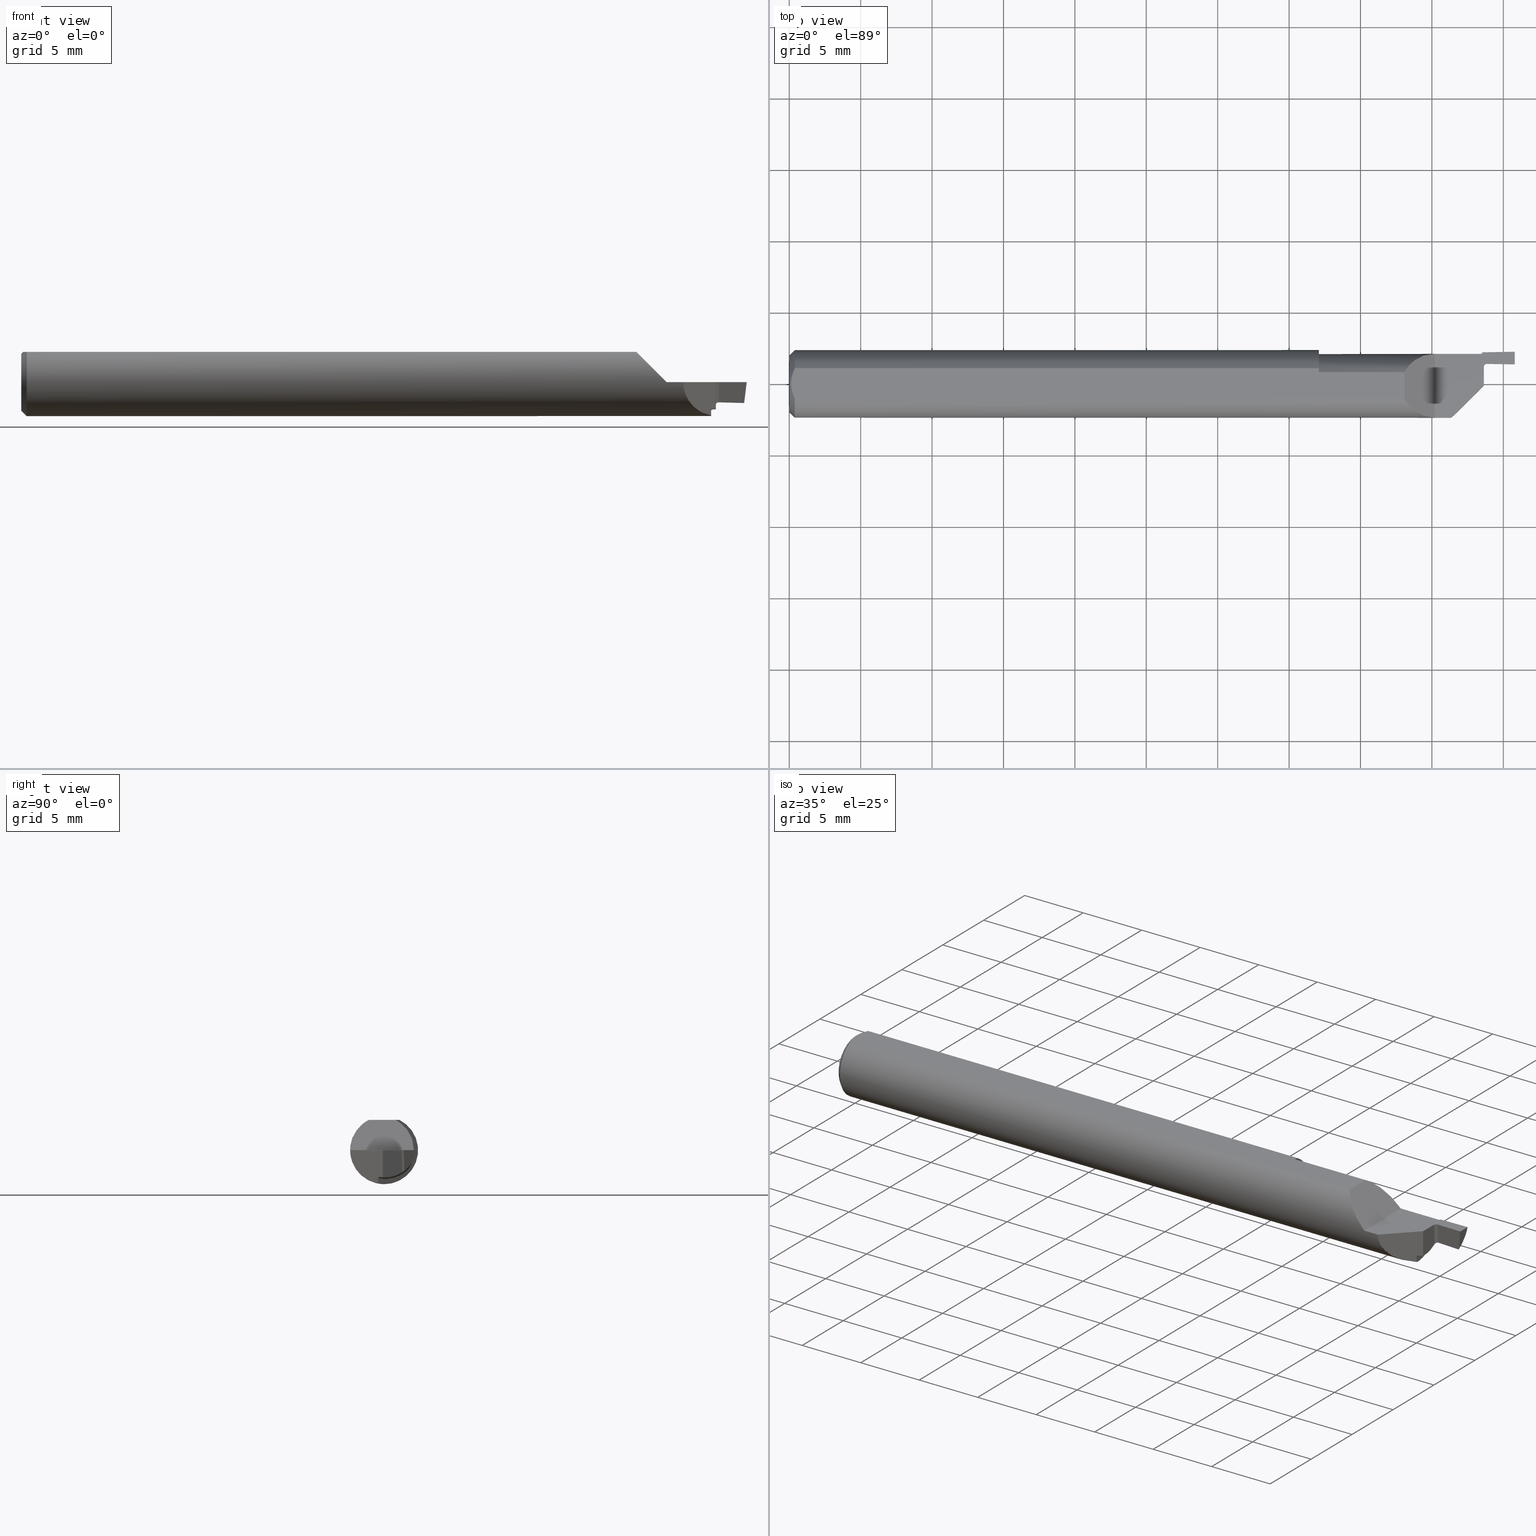
[diagram: canonical four-view strip — front | top / right | iso, engineering-drawing reading convention]
A machine part, canonical four-view strip (front | top / right | iso — engineering-drawing reading convention). The complete STEP part file that produces these views, byte-faithful:
ISO-10303-21;
HEADER;
FILE_DESCRIPTION (( 'STEP AP203' ),
    '1' );
FILE_NAME ('220025-FG187-035.STEP',
    '2024-06-10T22:14:53',
    ( '' ),
    ( '' ),
    'SwSTEP 2.0',
    'SolidWorks 2022',
    '' );
FILE_SCHEMA (( 'CONFIG_CONTROL_DESIGN' ));
ENDSEC;

DATA;
#1 = CARTESIAN_POINT ( 'NONE',  ( 1.779599999999998516, -0.1936000000000000221, 0.000000000000000000 ) ) ;
#2 = ORIENTED_EDGE ( 'NONE', *, *, #460, .F. ) ;
#3 = PERSON_AND_ORGANIZATION ( #180, #749 ) ;
#4 = VERTEX_POINT ( 'NONE', #46 ) ;
#5 = CARTESIAN_POINT ( 'NONE',  ( 1.923139705841341307, 0.05494083978472108498, -7.469896857675718968E-18 ) ) ;
#6 = CC_DESIGN_PERSON_AND_ORGANIZATION_ASSIGNMENT ( #61, #472, ( #647 ) ) ;
#7 = CARTESIAN_POINT ( 'NONE',  ( 1.905750312930598378, -0.01284968706940181789, -0.07360404961703144455 ) ) ;
#8 = ORIENTED_EDGE ( 'NONE', *, *, #137, .F. ) ;
#9 = CALENDAR_DATE ( 2024, 10, 6 ) ;
#10 = CARTESIAN_POINT ( 'NONE',  ( 0.000000000000000000, 9.625723841298240530E-18, 0.07860000000000036402 ) ) ;
#11 = DIRECTION ( 'NONE',  ( 0.9998476951563914916, 0.01745240643726934937, -0.000000000000000000 ) ) ;
#12 = VERTEX_POINT ( 'NONE', #363 ) ;
#13 = CARTESIAN_POINT ( 'NONE',  ( 1.779599999999998516, 0.08259923835978043305, 0.000000000000000000 ) ) ;
#14 = CARTESIAN_POINT ( 'NONE',  ( 1.743269953535348638, -0.09360000000000001652, 0.03633004646465035764 ) ) ;
#15 = EDGE_CURVE ( 'NONE', #788, #347, #403, .T. ) ;
#16 = VERTEX_POINT ( 'NONE', #532 ) ;
#17 = AXIS2_PLACEMENT_3D ( 'NONE', #340, #537, #402 ) ;
#18 = CARTESIAN_POINT ( 'NONE',  ( 1.923239966996806993, 0.06068479753441335250, -0.3937401514929490531 ) ) ;
#19 = AXIS2_PLACEMENT_3D ( 'NONE', #417, #113, #54 ) ;
#20 = DIRECTION ( 'NONE',  ( -1.000000000000000000, -0.000000000000000000, -0.000000000000000000 ) ) ;
#21 = DIRECTION ( 'NONE',  ( -0.9998476951563914916, -0.01745240643726934937, 0.000000000000000000 ) ) ;
#22 = EDGE_CURVE ( 'NONE', #12, #221, #502, .T. ) ;
#23 = CARTESIAN_POINT ( 'NONE',  ( 1.695999999999999286, 0.03097154424326387101, 0.08360000000000000764 ) ) ;
#24 = CARTESIAN_POINT ( 'NONE',  ( 1.909287277493165069, 0.08054268547510003151, -0.02396431490594234590 ) ) ;
#25 = APPROVAL ( #362, 'UNSPECIFIED' ) ;
#26 = CARTESIAN_POINT ( 'NONE',  ( 0.01499999999999997689, 0.000000000000000000, 0.000000000000000000 ) ) ;
#27 = PLANE ( 'NONE',  #630 ) ;
#28 = CARTESIAN_POINT ( 'NONE',  ( 1.969380434399822244, 0.05612029336502075139, -0.05687978705722047251 ) ) ;
#29 = CARTESIAN_POINT ( 'NONE',  ( 1.909474736878846945, 0.08120696248141254237, -0.02240616054335670126 ) ) ;
#30 = EDGE_CURVE ( 'NONE', #213, #390, #514, .T. ) ;
#31 = DIRECTION ( 'NONE',  ( 0.000000000000000000, 0.000000000000000000, -1.000000000000000000 ) ) ;
#32 = EDGE_CURVE ( 'NONE', #12, #16, #617, .T. ) ;
#33 = ORIENTED_EDGE ( 'NONE', *, *, #709, .F. ) ;
#34 = CC_DESIGN_APPROVAL ( #25, ( #531 ) ) ;
#35 = VECTOR ( 'NONE', #464, 39.37007874015748143 ) ;
#36 = ORIENTED_EDGE ( 'NONE', *, *, #182, .T. ) ;
#37 = PERSON_AND_ORGANIZATION ( #180, #749 ) ;
#38 = DIRECTION ( 'NONE',  ( -1.000000000000000000, -0.000000000000000000, -0.000000000000000000 ) ) ;
#39 = CARTESIAN_POINT ( 'NONE',  ( 2.100072031547824736, 0.09034600216794493044, 0.000000000000000000 ) ) ;
#40 = ORIENTED_EDGE ( 'NONE', *, *, #601, .F. ) ;
#41 = ADVANCED_FACE ( 'NONE', ( #505 ), #492, .F. ) ;
#42 = PLANE ( 'NONE',  #77 ) ;
#43 = DIRECTION ( 'NONE',  ( 0.000000000000000000, 1.000000000000000000, 0.000000000000000000 ) ) ;
#44 = ORIENTED_EDGE ( 'NONE', *, *, #328, .F. ) ;
#45 = CALENDAR_DATE ( 2024, 10, 6 ) ;
#46 = CARTESIAN_POINT ( 'NONE',  ( 1.901909888257020897, -0.01669011174297880401, -0.07793868746486105892 ) ) ;
#47 = CARTESIAN_POINT ( 'NONE',  ( 1.915000000000000036, -0.003600000000000014213, -0.07476680013141698278 ) ) ;
#48 = APPROVAL_PERSON_ORGANIZATION ( #425, #682, #729 ) ;
#49 = FACE_OUTER_BOUND ( 'NONE', #527, .T. ) ;
#50 = VECTOR ( 'NONE', #211, 39.37007874015748143 ) ;
#51 = EDGE_LOOP ( 'NONE', ( #101, #60, #345, #796, #122, #483 ) ) ;
#52 = ORIENTED_EDGE ( 'NONE', *, *, #721, .T. ) ;
#53 = DIRECTION ( 'NONE',  ( 0.7071067811865433539, 0.000000000000000000, -0.7071067811865514585 ) ) ;
#54 = DIRECTION ( 'NONE',  ( 0.000000000000000000, 0.000000000000000000, 1.000000000000000000 ) ) ;
#55 = ORIENTED_EDGE ( 'NONE', *, *, #435, .T. ) ;
#56 = CARTESIAN_POINT ( 'NONE',  ( 1.921046502187419680, 0.05497737679040836517, 1.392086351828217784E-17 ) ) ;
#57 = LINE ( 'NONE', #354, #665 ) ;
#58 = EDGE_CURVE ( 'NONE', #221, #227, #496, .T. ) ;
#59 =( BOUNDED_CURVE ( )  B_SPLINE_CURVE ( 3, ( #535, #392, #470, #648 ),
 .UNSPECIFIED., .F., .T. ) 
 B_SPLINE_CURVE_WITH_KNOTS ( ( 4, 4 ),
 ( 6.185876031421143395, 6.247658810435176235 ),
 .UNSPECIFIED. ) 
 CURVE ( )  GEOMETRIC_REPRESENTATION_ITEM ( )  RATIONAL_B_SPLINE_CURVE ( ( 1.000000000000000000, 0.9996819326463706190, 0.9996819326463706190, 1.000000000000000000 ) ) 
 REPRESENTATION_ITEM ( '' )  );
#60 = ORIENTED_EDGE ( 'NONE', *, *, #222, .F. ) ;
#61 = PERSON_AND_ORGANIZATION ( #180, #749 ) ;
#62 = VERTEX_POINT ( 'NONE', #376 ) ;
#63 = CARTESIAN_POINT ( 'NONE',  ( 1.992940752403448368, 0.05573046214555379962, -0.05749295794716190178 ) ) ;
#64 = LINE ( 'NONE', #1, #85 ) ;
#65 = APPROVAL_PERSON_ORGANIZATION ( #713, #299, #452 ) ;
#66 =( BOUNDED_CURVE ( )  B_SPLINE_CURVE ( 3, ( #189, #14, #436, #626 ),
 .UNSPECIFIED., .F., .T. ) 
 B_SPLINE_CURVE_WITH_KNOTS ( ( 4, 4 ),
 ( 4.712388980384689674, 5.816717474156034129 ),
 .UNSPECIFIED. ) 
 CURVE ( )  GEOMETRIC_REPRESENTATION_ITEM ( )  RATIONAL_B_SPLINE_CURVE ( ( 1.000000000000000000, 0.9009275347591065852, 0.9009275347591065852, 1.000000000000000000 ) ) 
 REPRESENTATION_ITEM ( '' )  );
#67 = AXIS2_PLACEMENT_3D ( 'NONE', #513, #411, #671 ) ;
#68 = SHAPE_DEFINITION_REPRESENTATION ( #538, #361 ) ;
#69 = DIRECTION ( 'NONE',  ( -0.0006094513490877275863, 0.000000000000000000, 0.9999998142845092364 ) ) ;
#70 = DIRECTION ( 'NONE',  ( -0.0006090802009083879243, -0.03489418134011375294, 0.9993908270190957621 ) ) ;
#71 = ORIENTED_EDGE ( 'NONE', *, *, #182, .F. ) ;
#72 = DIRECTION ( 'NONE',  ( -1.000000000000000000, 0.000000000000000000, -0.000000000000000000 ) ) ;
#73 = EDGE_CURVE ( 'NONE', #275, #614, #186, .T. ) ;
#74 = CARTESIAN_POINT ( 'NONE',  ( 1.915938313768146939, 0.05124713210070380720, -0.0001333563681705422592 ) ) ;
#75 = ORIENTED_EDGE ( 'NONE', *, *, #612, .T. ) ;
#76 = CARTESIAN_POINT ( 'NONE',  ( 1.923173598148256724, 0.05688252874747543042, -0.05561116678413494108 ) ) ;
#77 = AXIS2_PLACEMENT_3D ( 'NONE', #598, #580, #264 ) ;
#78 = CARTESIAN_POINT ( 'NONE',  ( 1.907437795510654732, 0.07780027282487421425, -0.02956988729452739509 ) ) ;
#79 = CIRCLE ( 'NONE', #770, 0.08499999999999999223 ) ;
#80 = CARTESIAN_POINT ( 'NONE',  ( 1.908651050893136913, 0.07911426009417796279, -0.02701736809610013820 ) ) ;
#81 = FACE_OUTER_BOUND ( 'NONE', #339, .T. ) ;
#82 = CARTESIAN_POINT ( 'NONE',  ( 1.906999999999999806, 0.08559923835978050510, 0.000000000000000000 ) ) ;
#83 = CARTESIAN_POINT ( 'NONE',  ( 0.004999999999999745967, 0.007308422719211837837, 0.08360000000000000764 ) ) ;
#84 = VERTEX_POINT ( 'NONE', #380 ) ;
#85 = VECTOR ( 'NONE', #230, 39.37007874015748143 ) ;
#86 = CARTESIAN_POINT ( 'NONE',  ( 0.01206089165507011340, -0.03555991978469319470, 0.08360000000000000764 ) ) ;
#87 = DIRECTION ( 'NONE',  ( 1.000000000000000000, 0.000000000000000000, 0.000000000000000000 ) ) ;
#88 = EDGE_CURVE ( 'NONE', #237, #355, #431, .T. ) ;
#89 = EDGE_CURVE ( 'NONE', #420, #660, #509, .T. ) ;
#90 = CARTESIAN_POINT ( 'NONE',  ( 1.905840104053412976, 0.07784846627859837165, -0.02942494915921045964 ) ) ;
#91 = ORIENTED_EDGE ( 'NONE', *, *, #235, .F. ) ;
#92 = DIRECTION ( 'NONE',  ( -0.0006090802009083879243, -0.03489418134011375294, 0.9993908270190957621 ) ) ;
#93 = MECHANICAL_CONTEXT ( 'NONE', #298, 'mechanical' ) ;
#94 = DIRECTION ( 'NONE',  ( 0.000000000000000000, 0.000000000000000000, 1.000000000000000000 ) ) ;
#95 = AXIS2_PLACEMENT_3D ( 'NONE', #656, #456, #94 ) ;
#96 = DIRECTION ( 'NONE',  ( 0.9998476951563914916, 0.01745240643726934590, 0.000000000000000000 ) ) ;
#97 = ADVANCED_FACE ( 'NONE', ( #444 ), #125, .T. ) ;
#98 = DIRECTION ( 'NONE',  ( 0.9998476951563912696, -0.01745240643727513294, 0.000000000000000000 ) ) ;
#99 = CARTESIAN_POINT ( 'NONE',  ( 0.01499999999999997689, -0.04209513035969836975, 0.08360000000000000764 ) ) ;
#100 = APPLICATION_PROTOCOL_DEFINITION ( 'international standard', 'config_control_design', 1994, #298 ) ;
#101 = ORIENTED_EDGE ( 'NONE', *, *, #112, .F. ) ;
#102 = CARTESIAN_POINT ( 'NONE',  ( 1.923139705841341307, 0.05494083978472108498, -7.469896857675718968E-18 ) ) ;
#103 = CYLINDRICAL_SURFACE ( 'NONE', #705, 0.09360000000000001652 ) ;
#104 = ORIENTED_EDGE ( 'NONE', *, *, #399, .T. ) ;
#105 = VERTEX_POINT ( 'NONE', #322 ) ;
#106 = CARTESIAN_POINT ( 'NONE',  ( 1.994678116789778466, 0.07424668302986661694, -0.04334326051326711782 ) ) ;
#107 = AXIS2_PLACEMENT_3D ( 'NONE', #375, #255, #199 ) ;
#108 = CARTESIAN_POINT ( 'NONE',  ( 1.906824858767854014, -0.01177514123214593207, -0.07378451293422426394 ) ) ;
#109 = AXIS2_PLACEMENT_3D ( 'NONE', #422, #236, #600 ) ;
#110 = ORIENTED_EDGE ( 'NONE', *, *, #374, .T. ) ;
#111 = CARTESIAN_POINT ( 'NONE',  ( 1.918951142015534739, 0.05415290954017582675, -3.006366610615142102E-05 ) ) ;
#112 = EDGE_CURVE ( 'NONE', #233, #420, #714, .T. ) ;
#113 = DIRECTION ( 'NONE',  ( -1.000000000000000000, -0.000000000000000000, -0.000000000000000000 ) ) ;
#114 = ORIENTED_EDGE ( 'NONE', *, *, #433, .T. ) ;
#115 = CALENDAR_DATE ( 2024, 10, 6 ) ;
#116 = ORIENTED_EDGE ( 'NONE', *, *, #197, .F. ) ;
#117 = CARTESIAN_POINT ( 'NONE',  ( 1.906574883647170537, 0.002545923840461173596, 0.01000000000000000715 ) ) ;
#118 = FACE_OUTER_BOUND ( 'NONE', #432, .T. ) ;
#119 = ORIENTED_EDGE ( 'NONE', *, *, #314, .T. ) ;
#120 = ORIENTED_EDGE ( 'NONE', *, *, #541, .F. ) ;
#121 = CARTESIAN_POINT ( 'NONE',  ( 1.915239968482530752, 0.06068479753441336638, -0.3937450271037417626 ) ) ;
#122 = ORIENTED_EDGE ( 'NONE', *, *, #163, .T. ) ;
#123 = ADVANCED_FACE ( 'NONE', ( #553 ), #701, .T. ) ;
#124 = AXIS2_PLACEMENT_3D ( 'NONE', #367, #72, #301 ) ;
#125 = CYLINDRICAL_SURFACE ( 'NONE', #396, 0.09349999999999999978 ) ;
#126 = PLANE ( 'NONE',  #263 ) ;
#127 = ORIENTED_EDGE ( 'NONE', *, *, #435, .F. ) ;
#128 = DIRECTION ( 'NONE',  ( 0.000000000000000000, 0.000000000000000000, 1.000000000000000000 ) ) ;
#129 = LINE ( 'NONE', #570, #733 ) ;
#130 = VECTOR ( 'NONE', #240, 39.37007874015748143 ) ;
#131 = DIRECTION ( 'NONE',  ( -1.000000000000000000, 0.000000000000000000, -0.000000000000000000 ) ) ;
#132 = DIRECTION ( 'NONE',  ( 0.000000000000000000, 0.000000000000000000, -1.000000000000000000 ) ) ;
#133 = CARTESIAN_POINT ( 'NONE',  ( 1.909904830660855035, 0.08305962383522204340, -0.01766538522684862889 ) ) ;
#134 = CARTESIAN_POINT ( 'NONE',  ( 1.923173598148256724, 0.05688252874747543042, -0.05561116678413494108 ) ) ;
#135 = CARTESIAN_POINT ( 'NONE',  ( 0.005981829149300420256, 0.01454044632356572483, 0.08359999999999997988 ) ) ;
#136 = DIRECTION ( 'NONE',  ( -1.000000000000000000, -0.000000000000000000, -0.000000000000000000 ) ) ;
#137 = EDGE_CURVE ( 'NONE', #777, #520, #344, .T. ) ;
#138 = CARTESIAN_POINT ( 'NONE',  ( 1.901789468821874829, -0.009791286923857110344, -0.09315189377763251344 ) ) ;
#139 = ADVANCED_FACE ( 'NONE', ( #81 ), #188, .F. ) ;
#140 = CARTESIAN_POINT ( 'NONE',  ( 0.004999999999999748569, -0.007328888879231088525, 0.08360000000000000764 ) ) ;
#141 = ORIENTED_EDGE ( 'NONE', *, *, #599, .T. ) ;
#142 = DIRECTION ( 'NONE',  ( 0.1218693434051474206, 0.000000000000000000, 0.9925461516413219831 ) ) ;
#143 = DIRECTION ( 'NONE',  ( -0.000000000000000000, -0.000000000000000000, 1.000000000000000000 ) ) ;
#144 = ORIENTED_EDGE ( 'NONE', *, *, #279, .F. ) ;
#145 = CARTESIAN_POINT ( 'NONE',  ( 1.901575645171388551, 0.002458661808274825982, 0.01000000000000000715 ) ) ;
#146 = LINE ( 'NONE', #39, #735 ) ;
#147 = EDGE_CURVE ( 'NONE', #62, #618, #407, .T. ) ;
#148 = ORIENTED_EDGE ( 'NONE', *, *, #22, .T. ) ;
#149 = CARTESIAN_POINT ( 'NONE',  ( 1.909999999999999920, 0.08702828251624213085, 0.000000000000000000 ) ) ;
#150 = CLOSED_SHELL ( 'NONE', ( #784, #306, #253, #659, #442, #636, #370, #760, #139, #542, #510, #696, #689, #615, #179, #41, #786, #753, #575, #123, #97 ) ) ;
#151 = CARTESIAN_POINT ( 'NONE',  ( 1.901909888257020897, -0.01669011174297880401, 0.01000000000000000715 ) ) ;
#152 = ORIENTED_EDGE ( 'NONE', *, *, #235, .T. ) ;
#153 = PRODUCT_DEFINITION ( 'UNKNOWN', '', #531, #704 ) ;
#154 = LINE ( 'NONE', #151, #415 ) ;
#155 = CARTESIAN_POINT ( 'NONE',  ( 2.000000000000000000, 0.08859923835978048001, 2.625135181411753044E-16 ) ) ;
#156 = CARTESIAN_POINT ( 'NONE',  ( 1.906999999999999806, 0.07781348418592398675, -0.02953019789128717709 ) ) ;
#157 = ORIENTED_EDGE ( 'NONE', *, *, #508, .F. ) ;
#158 =( LENGTH_UNIT ( ) NAMED_UNIT ( * ) SI_UNIT ( $, .METRE. ) );
#159 = ORIENTED_EDGE ( 'NONE', *, *, #754, .T. ) ;
#160 = CARTESIAN_POINT ( 'NONE',  ( 1.900437573559872639, 0.06765874076451616759, -0.05094391182363273290 ) ) ;
#161 = CARTESIAN_POINT ( 'NONE',  ( 1.915000000000000036, 0.04694205973490127998, 0.000000000000000000 ) ) ;
#162 = ORIENTED_EDGE ( 'NONE', *, *, #754, .F. ) ;
#163 = EDGE_CURVE ( 'NONE', #684, #739, #632, .T. ) ;
#164 = APPROVAL_DATE_TIME ( #674, #25 ) ;
#165 = ORIENTED_EDGE ( 'NONE', *, *, #574, .T. ) ;
#166 = CARTESIAN_POINT ( 'NONE',  ( 1.902685637353578540, 0.07651002556365837926, -0.03321202638859748618 ) ) ;
#167 = EDGE_CURVE ( 'NONE', #777, #213, #525, .T. ) ;
#168 = LOCAL_TIME ( 15, 14, 53.00000000000000000, #740 ) ;
#169 = LINE ( 'NONE', #288, #787 ) ;
#170 = CIRCLE ( 'NONE', #95, 0.09350000000000002753 ) ;
#171 = EDGE_LOOP ( 'NONE', ( #157, #573, #44, #478 ) ) ;
#172 = DATE_AND_TIME ( #419, #307 ) ;
#173 = VERTEX_POINT ( 'NONE', #329 ) ;
#174 = CARTESIAN_POINT ( 'NONE',  ( 1.915037319733266630, 0.04907505846455065962, -0.06123495565616293712 ) ) ;
#175 = CARTESIAN_POINT ( 'NONE',  ( 1.902696085013311444, -0.01590391498668851031, -0.07503733820427337109 ) ) ;
#176 = ORIENTED_EDGE ( 'NONE', *, *, #220, .F. ) ;
#177 = ORIENTED_EDGE ( 'NONE', *, *, #639, .T. ) ;
#178 = CARTESIAN_POINT ( 'NONE',  ( 1.915001483111417047, 0.04709178166913956937, -0.0002790132549057825102 ) ) ;
#179 = ADVANCED_FACE ( 'NONE', ( #49 ), #780, .F. ) ;
#180 = PERSON ( 'UNSPECIFIED', 'UNSPECIFIED', 'UNSPECIFIED', ('UNSPECIFIED'), ('UNSPECIFIED'), ('UNSPECIFIED') ) ;
#181 = CYLINDRICAL_SURFACE ( 'NONE', #109, 0.08499999999999999223 ) ;
#182 = EDGE_CURVE ( 'NONE', #393, #227, #207, .T. ) ;
#183 = CARTESIAN_POINT ( 'NONE',  ( 0.01499999999999997689, -0.04209513035969836975, 0.08360000000000000764 ) ) ;
#184 = FACE_OUTER_BOUND ( 'NONE', #260, .T. ) ;
#185 = ORIENTED_EDGE ( 'NONE', *, *, #673, .T. ) ;
#186 =( BOUNDED_CURVE ( )  B_SPLINE_CURVE ( 3, ( #134, #429, #28, #195 ),
 .UNSPECIFIED., .F., .T. ) 
 B_SPLINE_CURVE_WITH_KNOTS ( ( 4, 4 ),
 ( 0.9167460563621929737, 0.9523459390768723720 ),
 .UNSPECIFIED. ) 
 CURVE ( )  GEOMETRIC_REPRESENTATION_ITEM ( )  RATIONAL_B_SPLINE_CURVE ( ( 1.000000000000000000, 0.9998943901510362053, 0.9998943901510362053, 1.000000000000000000 ) ) 
 REPRESENTATION_ITEM ( '' )  );
#187 = AXIS2_PLACEMENT_3D ( 'NONE', #592, #284, #53 ) ;
#188 = PLANE ( 'NONE',  #571 ) ;
#189 = CARTESIAN_POINT ( 'NONE',  ( 1.779599999999998516, -0.09360000000000001652, 0.000000000000000000 ) ) ;
#190 = CARTESIAN_POINT ( 'NONE',  ( 1.901575645171388551, 0.002458661808274825982, 0.01000000000000000715 ) ) ;
#191 = EDGE_CURVE ( 'NONE', #277, #173, #695, .T. ) ;
#192 = CONICAL_SURFACE ( 'NONE', #480, 0.07860000000000036402, 0.7853981633974380649 ) ;
#193 = CARTESIAN_POINT ( 'NONE',  ( 1.915000000000000036, -0.003600000000000014213, -0.07476680013141698278 ) ) ;
#194 = MANIFOLD_SOLID_BREP ( 'Cut-Revolve1', #150 ) ;
#195 = CARTESIAN_POINT ( 'NONE',  ( 1.992940752403448368, 0.05573046214555379962, -0.05749295794716190178 ) ) ;
#196 = FACE_OUTER_BOUND ( 'NONE', #438, .T. ) ;
#197 = EDGE_CURVE ( 'NONE', #614, #788, #465, .T. ) ;
#198 = DIRECTION ( 'NONE',  ( 0.000000000000000000, 0.000000000000000000, 1.000000000000000000 ) ) ;
#199 = DIRECTION ( 'NONE',  ( 0.000000000000000000, 0.000000000000000000, -1.000000000000000000 ) ) ;
#200 = CARTESIAN_POINT ( 'NONE',  ( 1.901909888257020897, -0.01669011174297880401, -0.09209994663411529003 ) ) ;
#201 = LOCAL_TIME ( 15, 14, 53.00000000000000000, #336 ) ;
#202 = CARTESIAN_POINT ( 'NONE',  ( 0.01499999999999997689, 0.04209513035969836975, 0.08360000000000000764 ) ) ;
#203 = VECTOR ( 'NONE', #244, 39.37007874015748854 ) ;
#204 = CARTESIAN_POINT ( 'NONE',  ( 1.951266967456033008, 0.06831199587253675154, -0.3968986995238263371 ) ) ;
#205 = ORIENTED_EDGE ( 'NONE', *, *, #639, .F. ) ;
#206 = CARTESIAN_POINT ( 'NONE',  ( 1.915037673519438766, 0.04817394188894483231, -0.06181545499747614913 ) ) ;
#207 = LINE ( 'NONE', #389, #717 ) ;
#208 = ORIENTED_EDGE ( 'NONE', *, *, #612, .F. ) ;
#209 = B_SPLINE_CURVE_WITH_KNOTS ( 'NONE', 3,
 ( #348, #218, #214, #469, #225, #166, #710, #391, #726, #414, #160, #667 ),
 .UNSPECIFIED., .F., .F.,
 ( 4, 2, 2, 2, 2, 4 ),
 ( 7.164730493881761890E-05, 0.0001199185645158257674, 0.0001681898240928339158, 0.0002647323432468497249, 0.0004578173815548813429, 0.0008439874581709454465 ),
 .UNSPECIFIED. ) ;
#210 = CARTESIAN_POINT ( 'NONE',  ( 1.997161740714402001, 0.08581075949300676076, -0.02311576687432505273 ) ) ;
#211 = DIRECTION ( 'NONE',  ( 0.1217869383157124674, -0.03676811390802550705, 0.9918750160455355180 ) ) ;
#212 = ORIENTED_EDGE ( 'NONE', *, *, #112, .T. ) ;
#213 = VERTEX_POINT ( 'NONE', #644 ) ;
#214 = CARTESIAN_POINT ( 'NONE',  ( 1.904159361167143016, 0.07768036786545724770, -0.02993216137432031659 ) ) ;
#215 = AXIS2_PLACEMENT_3D ( 'NONE', #216, #790, #519 ) ;
#216 = CARTESIAN_POINT ( 'NONE',  ( 1.923379501196029517, 0.06867870645405720065, -0.3934609555193290253 ) ) ;
#217 = VERTEX_POINT ( 'NONE', #771 ) ;
#218 = CARTESIAN_POINT ( 'NONE',  ( 1.904624423976781111, 0.07788506681747428551, -0.02931433740435424734 ) ) ;
#219 = DIRECTION ( 'NONE',  ( 1.000000000000000000, 0.000000000000000000, 0.000000000000000000 ) ) ;
#220 = EDGE_CURVE ( 'NONE', #105, #560, #461, .T. ) ;
#221 = VERTEX_POINT ( 'NONE', #581 ) ;
#222 = EDGE_CURVE ( 'NONE', #4, #233, #154, .T. ) ;
#223 = DATE_TIME_ROLE ( 'creation_date' ) ;
#224 = ORIENTED_EDGE ( 'NONE', *, *, #673, .F. ) ;
#225 = CARTESIAN_POINT ( 'NONE',  ( 1.903301054385771574, 0.07712654616559803944, -0.03152462029223320611 ) ) ;
#226 = CARTESIAN_POINT ( 'NONE',  ( 1.695999999999999286, -0.04209513035969836975, 0.08360000000000000764 ) ) ;
#227 = VERTEX_POINT ( 'NONE', #99 ) ;
#228 = ORIENTED_EDGE ( 'NONE', *, *, #772, .T. ) ;
#229 = DIRECTION ( 'NONE',  ( 0.01745240643726934937, -0.9998476951563914916, 0.000000000000000000 ) ) ;
#230 = DIRECTION ( 'NONE',  ( 0.000000000000000000, -1.000000000000000000, 0.000000000000000000 ) ) ;
#231 = VECTOR ( 'NONE', #352, 39.37007874015748143 ) ;
#232 = PERSON_AND_ORGANIZATION ( #180, #749 ) ;
#233 = VERTEX_POINT ( 'NONE', #643 ) ;
#234 = PLANE ( 'NONE',  #416 ) ;
#235 = EDGE_CURVE ( 'NONE', #390, #551, #453, .T. ) ;
#236 = DIRECTION ( 'NONE',  ( -0.9998476951563914916, -0.01745240643726934590, -0.000000000000000000 ) ) ;
#237 = VERTEX_POINT ( 'NONE', #398 ) ;
#238 = PERSON_AND_ORGANIZATION_ROLE ( 'creator' ) ;
#239 = DIRECTION ( 'NONE',  ( -0.9999998142845093474, 2.059640020587636760E-15, -0.0006094513490877276948 ) ) ;
#240 = DIRECTION ( 'NONE',  ( -0.000000000000000000, 1.000000000000000000, 0.000000000000000000 ) ) ;
#241 = SECURITY_CLASSIFICATION_LEVEL ( 'unclassified' ) ;
#242 = CARTESIAN_POINT ( 'NONE',  ( 1.743231059775836922, 0.08259923835978047468, 0.03636894022416205935 ) ) ;
#243 = ORIENTED_EDGE ( 'NONE', *, *, #566, .F. ) ;
#244 = DIRECTION ( 'NONE',  ( 0.7071067811865546782, 0.000000000000000000, -0.7071067811865402453 ) ) ;
#245 = EDGE_CURVE ( 'NONE', #401, #105, #382, .T. ) ;
#246 = CARTESIAN_POINT ( 'NONE',  ( 0.01499999999999997689, 0.000000000000000000, 0.000000000000000000 ) ) ;
#247 = B_SPLINE_CURVE_WITH_KNOTS ( 'NONE', 3,
 ( #174, #747, #563, #364, #427, #76 ),
 .UNSPECIFIED., .F., .F.,
 ( 4, 2, 4 ),
 ( 3.066586833366748373E-19, 0.0001761180167212033710, 0.0003522360334424064709 ),
 .UNSPECIFIED. ) ;
#248 = CARTESIAN_POINT ( 'NONE',  ( 1.908268579038636448, 0.07856497033574647015, -0.02811198136715039458 ) ) ;
#249 = CARTESIAN_POINT ( 'NONE',  ( 1.900784079159449247, 0.04780744826051475799, -0.07826626310158363298 ) ) ;
#250 = VECTOR ( 'NONE', #776, 39.37007874015748143 ) ;
#251 = CARTESIAN_POINT ( 'NONE',  ( 1.915000000000000036, 0.04694205973490127998, -0.09360000000000001652 ) ) ;
#252 = EDGE_CURVE ( 'NONE', #275, #440, #589, .T. ) ;
#253 = ADVANCED_FACE ( 'NONE', ( #281 ), #103, .T. ) ;
#254 = CARTESIAN_POINT ( 'NONE',  ( 1.660946387129862867, -0.01090076164021952856, 0.000000000000000000 ) ) ;
#255 = DIRECTION ( 'NONE',  ( 1.000000000000000000, 0.000000000000000000, 0.000000000000000000 ) ) ;
#256 =( BOUNDED_CURVE ( )  B_SPLINE_CURVE ( 3, ( #731, #206, #327, #661 ),
 .UNSPECIFIED., .F., .T. ) 
 B_SPLINE_CURVE_WITH_KNOTS ( ( 4, 4 ),
 ( 2.163870722544329439, 2.182784762515730392 ),
 .UNSPECIFIED. ) 
 CURVE ( )  GEOMETRIC_REPRESENTATION_ITEM ( )  RATIONAL_B_SPLINE_CURVE ( ( 1.000000000000000000, 0.9999701884798476437, 0.9999701884798476437, 1.000000000000000000 ) ) 
 REPRESENTATION_ITEM ( '' )  );
#257 = DIRECTION ( 'NONE',  ( 0.000000000000000000, 0.000000000000000000, -1.000000000000000000 ) ) ;
#258 = CARTESIAN_POINT ( 'NONE',  ( 1.909999999999999920, 0.08495953172385005414, -0.01109297778572213879 ) ) ;
#259 = DIRECTION ( 'NONE',  ( -1.000000000000000000, 0.000000000000000000, -0.000000000000000000 ) ) ;
#260 = EDGE_LOOP ( 'NONE', ( #629, #423, #557, #596 ) ) ;
#261 = AXIS2_PLACEMENT_3D ( 'NONE', #694, #21, #441 ) ;
#262 = VECTOR ( 'NONE', #485, 39.37007874015748143 ) ;
#263 = AXIS2_PLACEMENT_3D ( 'NONE', #421, #559, #676 ) ;
#264 = DIRECTION ( 'NONE',  ( -0.7071067811865490160, -0.7071067811865459074, 0.000000000000000000 ) ) ;
#265 = CARTESIAN_POINT ( 'NONE',  ( 1.901728677906842080, -0.006308577734127045721, -0.09338716103925931433 ) ) ;
#266 = ORIENTED_EDGE ( 'NONE', *, *, #627, .T. ) ;
#267 = FACE_OUTER_BOUND ( 'NONE', #690, .T. ) ;
#268 = PRODUCT_RELATED_PRODUCT_CATEGORY ( 'detail', '', ( #506 ) ) ;
#269 = CARTESIAN_POINT ( 'NONE',  ( 1.905260168111437169, 0.07786592643805362313, -0.02937218220722300974 ) ) ;
#270 = EDGE_LOOP ( 'NONE', ( #176, #476, #471, #378, #71, #789, #536 ) ) ;
#271 =( NAMED_UNIT ( * ) PLANE_ANGLE_UNIT ( ) SI_UNIT ( $, .RADIAN. ) );
#272 = ORIENTED_EDGE ( 'NONE', *, *, #309, .T. ) ;
#273 = CARTESIAN_POINT ( 'NONE',  ( 1.915012826543458724, 0.04746300009823526539, -0.06225902874859993302 ) ) ;
#274 = DIRECTION ( 'NONE',  ( 0.000000000000000000, 0.000000000000000000, -1.000000000000000000 ) ) ;
#275 = VERTEX_POINT ( 'NONE', #593 ) ;
#276 = DATE_AND_TIME ( #45, #201 ) ;
#277 = VERTEX_POINT ( 'NONE', #585 ) ;
#278 = CARTESIAN_POINT ( 'NONE',  ( 1.915000000000000036, 0.04694205973490127998, -0.06257834209509931245 ) ) ;
#279 = EDGE_CURVE ( 'NONE', #590, #700, #59, .T. ) ;
#280 = AXIS2_PLACEMENT_3D ( 'NONE', #641, #569, #697 ) ;
#281 = FACE_OUTER_BOUND ( 'NONE', #303, .T. ) ;
#282 = ORIENTED_EDGE ( 'NONE', *, *, #88, .T. ) ;
#283 = ORIENTED_EDGE ( 'NONE', *, *, #316, .T. ) ;
#284 = DIRECTION ( 'NONE',  ( 0.7071067811865515695, -0.000000000000000000, 0.7071067811865434649 ) ) ;
#285 = CARTESIAN_POINT ( 'NONE',  ( 1.901909888257020897, -0.01669011174297880401, -0.07793868746486105892 ) ) ;
#286 = ORIENTED_EDGE ( 'NONE', *, *, #524, .T. ) ;
#287 = CARTESIAN_POINT ( 'NONE',  ( 1.695999999999999286, 0.04209513035969836975, 0.08360000000000000764 ) ) ;
#288 = CARTESIAN_POINT ( 'NONE',  ( 1.915000000000000036, -0.1936000000000000221, 0.000000000000000000 ) ) ;
#289 = ORIENTED_EDGE ( 'NONE', *, *, #554, .F. ) ;
#290 = ORIENTED_EDGE ( 'NONE', *, *, #245, .F. ) ;
#291 = CARTESIAN_POINT ( 'NONE',  ( 1.909999999999999920, 0.08589444783156630070, -0.007443874068179837274 ) ) ;
#292 = CONICAL_SURFACE ( 'NONE', #373, 0.07860000000000036402, 0.7853981633974380649 ) ;
#293 = LINE ( 'NONE', #610, #262 ) ;
#294 = AXIS2_PLACEMENT_3D ( 'NONE', #686, #609, #495 ) ;
#295 = VERTEX_POINT ( 'NONE', #161 ) ;
#296 = CARTESIAN_POINT ( 'NONE',  ( 1.824999999999999512, -0.09360000000000003040, 0.000000000000000000 ) ) ;
#297 = CARTESIAN_POINT ( 'NONE',  ( 1.906824858767854014, -0.01177514123214593207, -0.07378451293422426394 ) ) ;
#298 = APPLICATION_CONTEXT ( 'configuration controlled 3d designs of mechanical parts and assemblies' ) ;
#299 = APPROVAL ( #395, 'UNSPECIFIED' ) ;
#300 = ORIENTED_EDGE ( 'NONE', *, *, #167, .T. ) ;
#301 = DIRECTION ( 'NONE',  ( -0.000000000000000000, 0.000000000000000000, 1.000000000000000000 ) ) ;
#302 = CARTESIAN_POINT ( 'NONE',  ( 1.779599999999998516, -0.09360000000000001652, 0.000000000000000000 ) ) ;
#303 = EDGE_LOOP ( 'NONE', ( #290, #120, #52, #212, #504, #185, #36, #491, #282, #406 ) ) ;
#304 = EDGE_LOOP ( 'NONE', ( #55, #594, #283, #473, #357, #418 ) ) ;
#305 = FACE_OUTER_BOUND ( 'NONE', #385, .T. ) ;
#306 = ADVANCED_FACE ( 'NONE', ( #707 ), #324, .F. ) ;
#307 = LOCAL_TIME ( 15, 14, 53.00000000000000000, #356 ) ;
#308 = CIRCLE ( 'NONE', #769, 0.08999999999999999667 ) ;
#309 = EDGE_CURVE ( 'NONE', #551, #347, #146, .T. ) ;
#310 = CIRCLE ( 'NONE', #516, 0.09650000000000003020 ) ;
#311 = DIRECTION ( 'NONE',  ( -0.000000000000000000, -0.000000000000000000, 1.000000000000000000 ) ) ;
#312 = CARTESIAN_POINT ( 'NONE',  ( 1.915000000000000036, 0.04694205973490127998, -0.06257834209509931245 ) ) ;
#313 = CARTESIAN_POINT ( 'NONE',  ( 1.900488489910513890, 0.06474174499051200959, -0.05495872260724164737 ) ) ;
#314 = EDGE_CURVE ( 'NONE', #16, #12, #692, .T. ) ;
#315 = DIRECTION ( 'NONE',  ( 1.000000000000000000, 0.000000000000000000, 0.000000000000000000 ) ) ;
#316 = EDGE_CURVE ( 'NONE', #700, #658, #635, .T. ) ;
#317 = CARTESIAN_POINT ( 'NONE',  ( 0.009539353699420572222, -0.02875682547511376752, 0.08359999999999997988 ) ) ;
#318 = APPROVAL_PERSON_ORGANIZATION ( #3, #25, #623 ) ;
#319 = AXIS2_PLACEMENT_3D ( 'NONE', #578, #31, #259 ) ;
#320 = FACE_OUTER_BOUND ( 'NONE', #773, .T. ) ;
#321 =( BOUNDED_CURVE ( )  B_SPLINE_CURVE ( 3, ( #404, #410, #534, #47 ),
 .UNSPECIFIED., .F., .T. ) 
 B_SPLINE_CURVE_WITH_KNOTS ( ( 4, 4 ),
 ( 1.401479704250009561, 1.496704717618883240 ),
 .UNSPECIFIED. ) 
 CURVE ( )  GEOMETRIC_REPRESENTATION_ITEM ( )  RATIONAL_B_SPLINE_CURVE ( ( 1.000000000000000000, 0.9992444924767852621, 0.9992444924767852621, 1.000000000000000000 ) ) 
 REPRESENTATION_ITEM ( '' )  );
#322 = CARTESIAN_POINT ( 'NONE',  ( 1.459999999999999964, 0.04209513035969836975, 0.08360000000000000764 ) ) ;
#323 = CARTESIAN_POINT ( 'NONE',  ( 0.009492654797564087366, 0.02859466010166635333, 0.08360000000000000764 ) ) ;
#324 = PLANE ( 'NONE',  #319 ) ;
#325 = ORIENTED_EDGE ( 'NONE', *, *, #88, .F. ) ;
#326 = APPLICATION_CONTEXT ( 'configuration controlled 3d designs of mechanical parts and assemblies' ) ;
#327 = CARTESIAN_POINT ( 'NONE',  ( 1.915037497924591214, 0.04862587286716949647, -0.06152733550217896058 ) ) ;
#328 = EDGE_CURVE ( 'NONE', #4, #669, #455, .T. ) ;
#329 = CARTESIAN_POINT ( 'NONE',  ( 1.906999999999999806, 0.07781348418592398675, -0.02953019789128717709 ) ) ;
#330 = ORIENTED_EDGE ( 'NONE', *, *, #197, .T. ) ;
#331 = LENGTH_MEASURE_WITH_UNIT ( LENGTH_MEASURE( 0.02539999999999999897 ), #158 );
#332 = VECTOR ( 'NONE', #620, 39.37007874015748143 ) ;
#333 = CARTESIAN_POINT ( 'NONE',  ( 1.915037846502105623, 0.04771930594812412441, -0.06209928837421258702 ) ) ;
#334 = DIRECTION ( 'NONE',  ( 0.000000000000000000, 0.000000000000000000, 1.000000000000000000 ) ) ;
#335 = EDGE_LOOP ( 'NONE', ( #741, #8, #300, #286, #730, #463, #722, #409, #515 ) ) ;
#336 = COORDINATED_UNIVERSAL_TIME_OFFSET ( 8, 0, .BEHIND. ) ;
#337 = LINE ( 'NONE', #587, #35 ) ;
#338 = CARTESIAN_POINT ( 'NONE',  ( 1.459999999999999964, 0.000000000000000000, 0.000000000000000000 ) ) ;
#339 = EDGE_LOOP ( 'NONE', ( #119, #672 ) ) ;
#340 = CARTESIAN_POINT ( 'NONE',  ( 0.000000000000000000, 0.000000000000000000, 0.000000000000000000 ) ) ;
#341 = ORIENTED_EDGE ( 'NONE', *, *, #89, .F. ) ;
#342 = DIRECTION ( 'NONE',  ( -0.9998476951563914916, -0.01745240643726934937, 0.000000000000000000 ) ) ;
#343 = DIRECTION ( 'NONE',  ( -1.000000000000000000, -0.000000000000000000, -0.000000000000000000 ) ) ;
#344 =( BOUNDED_CURVE ( )  B_SPLINE_CURVE ( 3, ( #13, #242, #750, #23 ),
 .UNSPECIFIED., .F., .F. ) 
 B_SPLINE_CURVE_WITH_KNOTS ( ( 4, 4 ),
 ( 4.712388980384689674, 5.818846015254569792 ),
 .UNSPECIFIED. ) 
 CURVE ( )  GEOMETRIC_REPRESENTATION_ITEM ( )  RATIONAL_B_SPLINE_CURVE ( ( 1.000000000000000000, 0.9005550513955334901, 0.9005550513955334901, 1.000000000000000000 ) ) 
 REPRESENTATION_ITEM ( '' )  );
#345 = ORIENTED_EDGE ( 'NONE', *, *, #328, .T. ) ;
#346 = DIRECTION ( 'NONE',  ( 0.000000000000000000, 0.000000000000000000, -1.000000000000000000 ) ) ;
#347 = VERTEX_POINT ( 'NONE', #359 ) ;
#348 = CARTESIAN_POINT ( 'NONE',  ( 1.905260168111437169, 0.07786592643805362313, -0.02937218220722300974 ) ) ;
#349 = CIRCLE ( 'NONE', #19, 0.09349999999999999978 ) ;
#350 = CARTESIAN_POINT ( 'NONE',  ( 1.915001483111417047, 0.04709178166913956937, -0.0002790132549057825102 ) ) ;
#351 = ORIENTED_EDGE ( 'NONE', *, *, #723, .F. ) ;
#352 = DIRECTION ( 'NONE',  ( 0.000000000000000000, 1.000000000000000000, 0.000000000000000000 ) ) ;
#353 = CARTESIAN_POINT ( 'NONE',  ( 1.909999999999999920, 0.08658504680186657199, -0.003740770212192696606 ) ) ;
#354 = CARTESIAN_POINT ( 'NONE',  ( 0.000000000000000000, 0.04209513035969836975, 0.08360000000000000764 ) ) ;
#355 = VERTEX_POINT ( 'NONE', #605 ) ;
#356 = COORDINATED_UNIVERSAL_TIME_OFFSET ( 8, 0, .BEHIND. ) ;
#357 = ORIENTED_EDGE ( 'NONE', *, *, #574, .F. ) ;
#358 = DIRECTION ( 'NONE',  ( 0.01745240643726950550, -0.9998476951563914916, 0.000000000000000000 ) ) ;
#359 = CARTESIAN_POINT ( 'NONE',  ( 2.000000000000000000, 0.08859923835978048001, 2.625135181411753044E-16 ) ) ;
#360 = ORIENTED_EDGE ( 'NONE', *, *, #687, .F. ) ;
#361 = ADVANCED_BREP_SHAPE_REPRESENTATION ( '220025-FG187-035', ( #194, #17 ), #678 ) ;
#362 = APPROVAL_STATUS ( 'not_yet_approved' ) ;
#363 = CARTESIAN_POINT ( 'NONE',  ( 0.000000000000000000, 1.054420894065873337E-17, 0.07860000000000036402 ) ) ;
#364 = CARTESIAN_POINT ( 'NONE',  ( 1.918593297606354886, 0.05587903725172865127, -0.05638612150545480040 ) ) ;
#365 = AXIS2_PLACEMENT_3D ( 'NONE', #82, #488, #446 ) ;
#366 = ORIENTED_EDGE ( 'NONE', *, *, #30, .T. ) ;
#367 = CARTESIAN_POINT ( 'NONE',  ( 1.909999999999999920, 0.08559923835978050510, 0.000000000000000000 ) ) ;
#368 = ORIENTED_EDGE ( 'NONE', *, *, #314, .F. ) ;
#369 = PERSON_AND_ORGANIZATION ( #180, #749 ) ;
#370 = ADVANCED_FACE ( 'NONE', ( #118 ), #181, .T. ) ;
#371 = CARTESIAN_POINT ( 'NONE',  ( 1.909999999999999920, 0.08495953172385005414, -0.01109297778572213879 ) ) ;
#372 = DIRECTION ( 'NONE',  ( 0.7071067811865490160, 0.7071067811865459074, 0.000000000000000000 ) ) ;
#373 = AXIS2_PLACEMENT_3D ( 'NONE', #507, #766, #346 ) ;
#374 = EDGE_CURVE ( 'NONE', #217, #295, #293, .T. ) ;
#375 = CARTESIAN_POINT ( 'NONE',  ( 1.459999999999999964, 0.1325992383597804636, 0.000000000000000000 ) ) ;
#376 = CARTESIAN_POINT ( 'NONE',  ( 1.900488489910513890, 0.06474174499051200959, -0.05495872260724164737 ) ) ;
#377 = CARTESIAN_POINT ( 'NONE',  ( 1.901728677906842080, -0.006308577734127045721, -0.09338716103925931433 ) ) ;
#378 = ORIENTED_EDGE ( 'NONE', *, *, #58, .T. ) ;
#379 = CC_DESIGN_PERSON_AND_ORGANIZATION_ASSIGNMENT ( #37, #522, ( #506 ) ) ;
#380 = CARTESIAN_POINT ( 'NONE',  ( 1.909999999999999920, 0.08495953172385005414, -0.01109297778572213879 ) ) ;
#381 = AXIS2_PLACEMENT_3D ( 'NONE', #702, #311, #87 ) ;
#382 = CIRCLE ( 'NONE', #549, 0.09360000000000001652 ) ;
#383 = DIRECTION ( 'NONE',  ( 0.000000000000000000, 0.000000000000000000, 1.000000000000000000 ) ) ;
#384 = CARTESIAN_POINT ( 'NONE',  ( 1.824999999999999734, -0.09359999999999998876, -0.04733077926877288927 ) ) ;
#385 = EDGE_LOOP ( 'NONE', ( #366, #526, #351, #468 ) ) ;
#386 = PLANE ( 'NONE',  #757 ) ;
#387 = EDGE_CURVE ( 'NONE', #560, #401, #349, .T. ) ;
#388 = EDGE_CURVE ( 'NONE', #355, #105, #57, .T. ) ;
#389 = CARTESIAN_POINT ( 'NONE',  ( 0.000000000000000000, -0.04209513035969836975, 0.08360000000000000764 ) ) ;
#390 = VERTEX_POINT ( 'NONE', #743 ) ;
#391 = CARTESIAN_POINT ( 'NONE',  ( 1.901653078585776591, 0.07467193290329079969, -0.03775699062248234067 ) ) ;
#392 = CARTESIAN_POINT ( 'NONE',  ( 1.915021837145411299, 0.04755530520648557774, -0.03583081961900130147 ) ) ;
#393 = VERTEX_POINT ( 'NONE', #226 ) ;
#394 = CC_DESIGN_APPROVAL ( #299, ( #153 ) ) ;
#395 = APPROVAL_STATUS ( 'not_yet_approved' ) ;
#396 = AXIS2_PLACEMENT_3D ( 'NONE', #254, #136, #198 ) ;
#397 = LINE ( 'NONE', #652, #649 ) ;
#398 = CARTESIAN_POINT ( 'NONE',  ( 0.01499999999999997689, 0.000000000000000000, -0.09360000000000003040 ) ) ;
#399 = EDGE_CURVE ( 'NONE', #739, #295, #169, .T. ) ;
#400 =( BOUNDED_CURVE ( )  B_SPLINE_CURVE ( 3, ( #193, #567, #688, #312 ),
 .UNSPECIFIED., .F., .T. ) 
 B_SPLINE_CURVE_WITH_KNOTS ( ( 4, 4 ),
 ( 1.496704717618883018, 2.118230482758085120 ),
 .UNSPECIFIED. ) 
 CURVE ( )  GEOMETRIC_REPRESENTATION_ITEM ( )  RATIONAL_B_SPLINE_CURVE ( ( 1.000000000000000000, 0.9680670459117550752, 0.9680670459117550752, 1.000000000000000000 ) ) 
 REPRESENTATION_ITEM ( '' )  );
#401 = VERTEX_POINT ( 'NONE', #545 ) ;
#402 = DIRECTION ( 'NONE',  ( 1.000000000000000000, 0.000000000000000000, 0.000000000000000000 ) ) ;
#403 = LINE ( 'NONE', #655, #231 ) ;
#404 = CARTESIAN_POINT ( 'NONE',  ( 1.906824858767854014, -0.01177514123214593207, -0.07378451293422426394 ) ) ;
#405 = CARTESIAN_POINT ( 'NONE',  ( 1.923379501196029517, 0.06867870645405720065, -0.3934609555193290253 ) ) ;
#406 = ORIENTED_EDGE ( 'NONE', *, *, #388, .T. ) ;
#407 =( BOUNDED_CURVE ( )  B_SPLINE_CURVE ( 3, ( #313, #249, #761, #265 ),
 .UNSPECIFIED., .F., .T. ) 
 B_SPLINE_CURVE_WITH_KNOTS ( ( 4, 4 ),
 ( 0.6283291268079855829, 1.521662293291339507 ),
 .UNSPECIFIED. ) 
 CURVE ( )  GEOMETRIC_REPRESENTATION_ITEM ( )  RATIONAL_B_SPLINE_CURVE ( ( 1.000000000000000000, 0.9345946788923544801, 0.9345946788923544801, 1.000000000000000000 ) ) 
 REPRESENTATION_ITEM ( '' )  );
#408 = CARTESIAN_POINT ( 'NONE',  ( 2.000000000000000000, 0.05359923835978044199, 0.000000000000000000 ) ) ;
#409 = ORIENTED_EDGE ( 'NONE', *, *, #541, .T. ) ;
#410 = CARTESIAN_POINT ( 'NONE',  ( 1.909533000582143147, -0.009066999417856698093, -0.07423932857660134332 ) ) ;
#411 = DIRECTION ( 'NONE',  ( -1.000000000000000000, -0.000000000000000000, -0.000000000000000000 ) ) ;
#412 = CIRCLE ( 'NONE', #562, 0.09360000000000001652 ) ;
#413 = ORIENTED_EDGE ( 'NONE', *, *, #477, .F. ) ;
#414 = CARTESIAN_POINT ( 'NONE',  ( 1.900600193056213527, 0.07024888610877730311, -0.04671097493651391735 ) ) ;
#415 = VECTOR ( 'NONE', #711, 39.37007874015748143 ) ;
#416 = AXIS2_PLACEMENT_3D ( 'NONE', #190, #484, #229 ) ;
#417 = CARTESIAN_POINT ( 'NONE',  ( 1.459999999999999964, -0.01090076164021952856, 0.000000000000000000 ) ) ;
#418 = ORIENTED_EDGE ( 'NONE', *, *, #374, .F. ) ;
#419 = CALENDAR_DATE ( 2024, 10, 6 ) ;
#420 = VERTEX_POINT ( 'NONE', #481 ) ;
#421 = CARTESIAN_POINT ( 'NONE',  ( 1.779999999999999805, -0.1936000000000000221, 0.000000000000000000 ) ) ;
#422 = CARTESIAN_POINT ( 'NONE',  ( 2.101545184202666672, 0.005949143095728696290, 0.01000000000000000715 ) ) ;
#423 = ORIENTED_EDGE ( 'NONE', *, *, #449, .T. ) ;
#424 = CC_DESIGN_PERSON_AND_ORGANIZATION_ASSIGNMENT ( #232, #552, ( #531 ) ) ;
#425 = PERSON_AND_ORGANIZATION ( #180, #749 ) ;
#426 = ORIENTED_EDGE ( 'NONE', *, *, #15, .F. ) ;
#427 = CARTESIAN_POINT ( 'NONE',  ( 1.920808794596635671, 0.05692149851234375862, -0.05554508338515483368 ) ) ;
#428 = DIRECTION ( 'NONE',  ( 0.000000000000000000, 1.000000000000000000, 0.000000000000000000 ) ) ;
#429 = CARTESIAN_POINT ( 'NONE',  ( 1.946122260022475237, 0.05650435612647151939, -0.05625245708398779465 ) ) ;
#430 = CARTESIAN_POINT ( 'NONE',  ( 1.915039367740882570, 0.04918368584046482750, -0.0002059503887036773912 ) ) ;
#431 = CIRCLE ( 'NONE', #597, 0.09360000000000001652 ) ;
#432 = EDGE_LOOP ( 'NONE', ( #736, #546, #454, #670, #272, #413, #793, #208, #543, #127, #162, #2 ) ) ;
#433 = EDGE_CURVE ( 'NONE', #777, #660, #64, .T. ) ;
#434 = CARTESIAN_POINT ( 'NONE',  ( 0.000000000000000000, 0.000000000000000000, 0.000000000000000000 ) ) ;
#435 = EDGE_CURVE ( 'NONE', #217, #590, #621, .T. ) ;
#436 = CARTESIAN_POINT ( 'NONE',  ( 1.712338867969052103, -0.07454376160376645355, 0.06726113203094705173 ) ) ;
#437 =( BOUNDED_CURVE ( )  B_SPLINE_CURVE ( 3, ( #371, #291, #353, #624 ),
 .UNSPECIFIED., .F., .T. ) 
 B_SPLINE_CURVE_WITH_KNOTS ( ( 4, 4 ),
 ( 2.890819833966177477, 3.023672501564544035 ),
 .UNSPECIFIED. ) 
 CURVE ( )  GEOMETRIC_REPRESENTATION_ITEM ( )  RATIONAL_B_SPLINE_CURVE ( ( 1.000000000000000000, 0.9985297214737942628, 0.9985297214737942628, 1.000000000000000000 ) ) 
 REPRESENTATION_ITEM ( '' )  );
#438 = EDGE_LOOP ( 'NONE', ( #486, #148, #606, #325, #608 ) ) ;
#439 = FACE_OUTER_BOUND ( 'NONE', #654, .T. ) ;
#440 = VERTEX_POINT ( 'NONE', #102 ) ;
#441 = DIRECTION ( 'NONE',  ( 0.01745240643726935284, -0.9998476951563916026, 0.000000000000000000 ) ) ;
#442 = ADVANCED_FACE ( 'NONE', ( #539 ), #783, .T. ) ;
#443 = PLANE ( 'NONE',  #107 ) ;
#444 = FACE_OUTER_BOUND ( 'NONE', #335, .T. ) ;
#445 = CYLINDRICAL_SURFACE ( 'NONE', #381, 0.008000000000000024453 ) ;
#446 = DIRECTION ( 'NONE',  ( -1.000000000000000000, 0.000000000000000000, 0.000000000000000000 ) ) ;
#447 = CARTESIAN_POINT ( 'NONE',  ( 1.901849935261683777, -0.01325540694044773093, -0.09272237486619804014 ) ) ;
#448 = CARTESIAN_POINT ( 'NONE',  ( 1.915245143464350930, -0.1825088416475796060, -0.4022362395153177284 ) ) ;
#449 = EDGE_CURVE ( 'NONE', #62, #4, #308, .T. ) ;
#450 = VECTOR ( 'NONE', #576, 39.37007874015748854 ) ;
#451 = VECTOR ( 'NONE', #716, 39.37007874015748143 ) ;
#452 = APPROVAL_ROLE ( '' ) ;
#453 = LINE ( 'NONE', #657, #683 ) ;
#454 = ORIENTED_EDGE ( 'NONE', *, *, #723, .T. ) ;
#455 = B_SPLINE_CURVE_WITH_KNOTS ( 'NONE', 3,
 ( #285, #732, #175, #475, #7, #108 ),
 .UNSPECIFIED., .F., .F.,
 ( 4, 2, 4 ),
 ( 0.000000000000000000, 0.0001158684190002850795, 0.0002317368380005701591 ),
 .UNSPECIFIED. ) ;
#456 = DIRECTION ( 'NONE',  ( -1.000000000000000000, -0.000000000000000000, -0.000000000000000000 ) ) ;
#457 = CARTESIAN_POINT ( 'NONE',  ( 1.459999999999999964, -0.1936000000000000221, 0.08360000000000000764 ) ) ;
#458 = ORIENTED_EDGE ( 'NONE', *, *, #554, .T. ) ;
#459 = FACE_OUTER_BOUND ( 'NONE', #51, .T. ) ;
#460 = EDGE_CURVE ( 'NONE', #669, #684, #321, .T. ) ;
#461 = LINE ( 'NONE', #457, #451 ) ;
#462 = ORIENTED_EDGE ( 'NONE', *, *, #252, .F. ) ;
#463 = ORIENTED_EDGE ( 'NONE', *, *, #508, .T. ) ;
#464 = DIRECTION ( 'NONE',  ( 1.000000000000000000, 0.000000000000000000, 0.000000000000000000 ) ) ;
#465 = LINE ( 'NONE', #204, #50 ) ;
#466 = ORIENTED_EDGE ( 'NONE', *, *, #309, .F. ) ;
#467 = FACE_OUTER_BOUND ( 'NONE', #586, .T. ) ;
#468 = ORIENTED_EDGE ( 'NONE', *, *, #524, .F. ) ;
#469 = CARTESIAN_POINT ( 'NONE',  ( 1.903532304466862390, 0.07732313885714185708, -0.03096924555218472791 ) ) ;
#470 = CARTESIAN_POINT ( 'NONE',  ( 1.915010900831862761, 0.04739088823714927151, -0.01788630028430399088 ) ) ;
#471 = ORIENTED_EDGE ( 'NONE', *, *, #698, .T. ) ;
#472 = PERSON_AND_ORGANIZATION_ROLE ( 'classification_officer' ) ;
#473 = ORIENTED_EDGE ( 'NONE', *, *, #599, .F. ) ;
#474 = CARTESIAN_POINT ( 'NONE',  ( 1.992940752403448368, 0.05573046214555379962, -0.05749295794716190178 ) ) ;
#475 = CARTESIAN_POINT ( 'NONE',  ( 1.904635932753661720, -0.01396406724633801957, -0.07374044009841476677 ) ) ;
#476 = ORIENTED_EDGE ( 'NONE', *, *, #388, .F. ) ;
#477 = EDGE_CURVE ( 'NONE', #614, #347, #521, .T. ) ;
#478 = ORIENTED_EDGE ( 'NONE', *, *, #449, .F. ) ;
#479 = CARTESIAN_POINT ( 'NONE',  ( 1.915001483111417047, 0.04709178166913956937, -0.0002790132549057825102 ) ) ;
#480 = AXIS2_PLACEMENT_3D ( 'NONE', #523, #779, #715 ) ;
#481 = CARTESIAN_POINT ( 'NONE',  ( 1.824999999999999512, -0.09360000000000003040, 0.000000000000000000 ) ) ;
#482 = DATE_TIME_ROLE ( 'classification_date' ) ;
#483 = ORIENTED_EDGE ( 'NONE', *, *, #772, .F. ) ;
#484 = DIRECTION ( 'NONE',  ( -0.9998476951563914916, -0.01745240643726934937, 0.000000000000000000 ) ) ;
#485 = DIRECTION ( 'NONE',  ( -0.000000000000000000, -0.000000000000000000, 1.000000000000000000 ) ) ;
#486 = ORIENTED_EDGE ( 'NONE', *, *, #32, .F. ) ;
#487 = DATE_AND_TIME ( #9, #768 ) ;
#488 = DIRECTION ( 'NONE',  ( -0.000000000000000000, -0.000000000000000000, 1.000000000000000000 ) ) ;
#489 = CARTESIAN_POINT ( 'NONE',  ( 1.915037846502105623, 0.04771930594812412441, -0.06209928837421258702 ) ) ;
#490 = EDGE_CURVE ( 'NONE', #590, #602, #256, .T. ) ;
#491 = ORIENTED_EDGE ( 'NONE', *, *, #709, .T. ) ;
#492 = PLANE ( 'NONE',  #533 ) ;
#493 = LINE ( 'NONE', #287, #130 ) ;
#494 = VECTOR ( 'NONE', #92, 39.37007874015748143 ) ;
#495 = DIRECTION ( 'NONE',  ( -1.000000000000000000, 0.000000000000000000, 0.000000000000000000 ) ) ;
#496 = B_SPLINE_CURVE_WITH_KNOTS ( 'NONE', 3,
 ( #634, #140, #746, #317, #86, #183 ),
 .UNSPECIFIED., .F., .F.,
 ( 4, 2, 4 ),
 ( 0.002614097267282436323, 0.003163218599391053043, 0.003712339931499670197 ),
 .UNSPECIFIED. ) ;
#497 = FACE_OUTER_BOUND ( 'NONE', #304, .T. ) ;
#498 = CARTESIAN_POINT ( 'NONE',  ( 1.910000000000000364, 0.08411108047390786213, -0.01440459749658634311 ) ) ;
#499 = LOCAL_TIME ( 15, 14, 53.00000000000000000, #679 ) ;
#500 = CC_DESIGN_PERSON_AND_ORGANIZATION_ASSIGNMENT ( #369, #238, ( #153 ) ) ;
#501 = AXIS2_PLACEMENT_3D ( 'NONE', #742, #616, #128 ) ;
#502 = LINE ( 'NONE', #10, #450 ) ;
#503 = CARTESIAN_POINT ( 'NONE',  ( 1.901909888257020897, -0.01669011174297880401, -0.09209994663411529003 ) ) ;
#504 = ORIENTED_EDGE ( 'NONE', *, *, #89, .T. ) ;
#505 = FACE_OUTER_BOUND ( 'NONE', #734, .T. ) ;
#506 = PRODUCT ( '220025-FG187-035', '220025-FG187-035', '', ( #93 ) ) ;
#507 = CARTESIAN_POINT ( 'NONE',  ( 0.000000000000000000, 0.000000000000000000, 0.000000000000000000 ) ) ;
#508 = EDGE_CURVE ( 'NONE', #277, #62, #209, .T. ) ;
#509 = LINE ( 'NONE', #764, #332 ) ;
#510 = ADVANCED_FACE ( 'NONE', ( #459 ), #42, .F. ) ;
#511 = CARTESIAN_POINT ( 'NONE',  ( 1.915000000000000036, -0.003600000000000014213, 0.000000000000000000 ) ) ;
#512 = TOROIDAL_SURFACE ( 'NONE', #261, 0.08999999999999999667, 0.005000000000000000104 ) ;
#513 = CARTESIAN_POINT ( 'NONE',  ( 0.000000000000000000, 0.000000000000000000, 0.000000000000000000 ) ) ;
#514 = CIRCLE ( 'NONE', #365, 0.002999999999999940648 ) ;
#515 = ORIENTED_EDGE ( 'NONE', *, *, #387, .F. ) ;
#516 = AXIS2_PLACEMENT_3D ( 'NONE', #762, #20, #383 ) ;
#517 =( CONVERSION_BASED_UNIT ( 'INCH', #331 ) LENGTH_UNIT ( ) NAMED_UNIT ( #725 ) );
#518 = CARTESIAN_POINT ( 'NONE',  ( 1.915000000000000036, 0.04720396510453801070, -0.06241871402810392905 ) ) ;
#519 = DIRECTION ( 'NONE',  ( 0.000000000000000000, -0.03490480639812536257, 0.9993906415863165194 ) ) ;
#520 = VERTEX_POINT ( 'NONE', #646 ) ;
#521 =( BOUNDED_CURVE ( )  B_SPLINE_CURVE ( 3, ( #474, #106, #210, #155 ),
 .UNSPECIFIED., .F., .T. ) 
 B_SPLINE_CURVE_WITH_KNOTS ( ( 4, 4 ),
 ( 0.7945708915648489468, 1.594068833761937753 ),
 .UNSPECIFIED. ) 
 CURVE ( )  GEOMETRIC_REPRESENTATION_ITEM ( )  RATIONAL_B_SPLINE_CURVE ( ( 1.000000000000000000, 0.9474391468266474270, 0.9474391468266474270, 1.000000000000000000 ) ) 
 REPRESENTATION_ITEM ( '' )  );
#522 = PERSON_AND_ORGANIZATION_ROLE ( 'design_owner' ) ;
#523 = CARTESIAN_POINT ( 'NONE',  ( 0.000000000000000000, 0.000000000000000000, 0.000000000000000000 ) ) ;
#524 = EDGE_CURVE ( 'NONE', #213, #173, #170, .T. ) ;
#525 = LINE ( 'NONE', #727, #250 ) ;
#526 = ORIENTED_EDGE ( 'NONE', *, *, #687, .T. ) ;
#527 = EDGE_LOOP ( 'NONE', ( #611, #330, #289, #462 ) ) ;
#528 = LINE ( 'NONE', #584, #628 ) ;
#529 = CARTESIAN_POINT ( 'NONE',  ( 0.000000000000000000, 0.000000000000000000, 0.000000000000000000 ) ) ;
#530 = ORIENTED_EDGE ( 'NONE', *, *, #58, .F. ) ;
#531 = PRODUCT_DEFINITION_FORMATION_WITH_SPECIFIED_SOURCE ( 'ANY', '', #506, .NOT_KNOWN. ) ;
#532 = CARTESIAN_POINT ( 'NONE',  ( 0.000000000000000000, 0.000000000000000000, -0.07860000000000036402 ) ) ;
#533 = AXIS2_PLACEMENT_3D ( 'NONE', #448, #239, #69 ) ;
#534 = CARTESIAN_POINT ( 'NONE',  ( 1.912260108009703252, -0.006339891990296599340, -0.07456700520448980574 ) ) ;
#535 = CARTESIAN_POINT ( 'NONE',  ( 1.915037846502105623, 0.04771930594812412441, -0.06209928837421258702 ) ) ;
#536 = ORIENTED_EDGE ( 'NONE', *, *, #556, .F. ) ;
#537 = DIRECTION ( 'NONE',  ( 0.000000000000000000, 0.000000000000000000, 1.000000000000000000 ) ) ;
#538 = PRODUCT_DEFINITION_SHAPE ( 'NONE', 'NONE',  #153 ) ;
#539 = FACE_OUTER_BOUND ( 'NONE', #603, .T. ) ;
#540 = CARTESIAN_POINT ( 'NONE',  ( 1.915005047996913845, 0.04722621192712617155, -0.008282853067530246763 ) ) ;
#541 = EDGE_CURVE ( 'NONE', #618, #401, #528, .T. ) ;
#542 = ADVANCED_FACE ( 'NONE', ( #267 ), #192, .T. ) ;
#543 = ORIENTED_EDGE ( 'NONE', *, *, #490, .F. ) ;
#544 = CYLINDRICAL_SURFACE ( 'NONE', #564, 0.008000000000000109454 ) ;
#545 = CARTESIAN_POINT ( 'NONE',  ( 1.459999999999999964, -0.006308577734120247339, -0.09338716103925938372 ) ) ;
#546 = ORIENTED_EDGE ( 'NONE', *, *, #191, .T. ) ;
#547 = B_SPLINE_CURVE_WITH_KNOTS ( 'NONE', 3,
 ( #202, #699, #323, #135, #83, #577 ),
 .UNSPECIFIED., .F., .F.,
 ( 4, 2, 4 ),
 ( 0.001518921481343232533, 0.002066509374312834428, 0.002614097267282436323 ),
 .UNSPECIFIED. ) ;
#548 = DIRECTION ( 'NONE',  ( -0.0006090802009083879243, -0.03489418134011375294, 0.9993908270190957621 ) ) ;
#549 = AXIS2_PLACEMENT_3D ( 'NONE', #338, #219, #274 ) ;
#550 = CARTESIAN_POINT ( 'NONE',  ( 1.915003523125126783, 0.04718045162159490574, -0.005613609509414640986 ) ) ;
#551 = VERTEX_POINT ( 'NONE', #149 ) ;
#552 = PERSON_AND_ORGANIZATION_ROLE ( 'creator' ) ;
#553 = FACE_OUTER_BOUND ( 'NONE', #675, .T. ) ;
#554 = EDGE_CURVE ( 'NONE', #440, #788, #397, .T. ) ;
#555 = CARTESIAN_POINT ( 'NONE',  ( 1.915037319733266630, 0.04907505846455065962, -0.06123495565616293712 ) ) ;
#556 = EDGE_CURVE ( 'NONE', #560, #520, #337, .T. ) ;
#557 = ORIENTED_EDGE ( 'NONE', *, *, #222, .T. ) ;
#558 = APPROVAL_STATUS ( 'not_yet_approved' ) ;
#559 = DIRECTION ( 'NONE',  ( 0.000000000000000000, 0.000000000000000000, -1.000000000000000000 ) ) ;
#560 = VERTEX_POINT ( 'NONE', #719 ) ;
#561 = APPROVAL_DATE_TIME ( #276, #299 ) ;
#562 = AXIS2_PLACEMENT_3D ( 'NONE', #246, #315, #691 ) ;
#563 = CARTESIAN_POINT ( 'NONE',  ( 1.915770870846785101, 0.05292426111991078985, -0.05860965292669666205 ) ) ;
#564 = AXIS2_PLACEMENT_3D ( 'NONE', #18, #548, #755 ) ;
#565 = CARTESIAN_POINT ( 'NONE',  ( 1.779599999999998516, 0.08259923835978043305, 0.000000000000000000 ) ) ;
#566 = EDGE_CURVE ( 'NONE', #393, #520, #493, .T. ) ;
#567 = CARTESIAN_POINT ( 'NONE',  ( 1.915000000000000036, 0.01425301277317901280, -0.07609178252802244191 ) ) ;
#568 = CC_DESIGN_DATE_AND_TIME_ASSIGNMENT ( #172, #223, ( #153 ) ) ;
#569 = DIRECTION ( 'NONE',  ( -1.000000000000000000, -0.000000000000000000, -0.000000000000000000 ) ) ;
#570 = CARTESIAN_POINT ( 'NONE',  ( 1.752499999999999725, -0.1660999999999996368, 0.000000000000000000 ) ) ;
#571 = AXIS2_PLACEMENT_3D ( 'NONE', #434, #693, #132 ) ;
#572 = FACE_OUTER_BOUND ( 'NONE', #718, .T. ) ;
#573 = ORIENTED_EDGE ( 'NONE', *, *, #662, .F. ) ;
#574 = EDGE_CURVE ( 'NONE', #295, #440, #582, .T. ) ;
#575 = ADVANCED_FACE ( 'NONE', ( #305 ), #759, .F. ) ;
#576 = DIRECTION ( 'NONE',  ( 0.7071067811865546782, 8.659560562354842879E-17, 0.7071067811865402453 ) ) ;
#577 = CARTESIAN_POINT ( 'NONE',  ( 0.004999999999999758110, 1.025183009042025117E-17, 0.08360000000000000764 ) ) ;
#578 = CARTESIAN_POINT ( 'NONE',  ( 0.000000000000000000, -0.1936000000000000221, 0.08360000000000000764 ) ) ;
#579 = ORIENTED_EDGE ( 'NONE', *, *, #22, .F. ) ;
#580 = DIRECTION ( 'NONE',  ( -0.7071067811865460184, 0.7071067811865491270, 0.000000000000000000 ) ) ;
#581 = CARTESIAN_POINT ( 'NONE',  ( 0.004999999999999758110, 1.025183009042025117E-17, 0.08360000000000000764 ) ) ;
#582 = CIRCLE ( 'NONE', #294, 0.008000000000000024453 ) ;
#583 = B_SPLINE_CURVE_WITH_KNOTS ( 'NONE', 3,
 ( #637, #78, #633, #631, #248, #80, #756, #24, #29, #133, #498, #258 ),
 .UNSPECIFIED., .F., .F.,
 ( 4, 2, 2, 2, 2, 4 ),
 ( 2.020988218250147240E-07, 3.329952054280739310E-05, 6.639694226378977271E-05, 0.0001325917857057479590, 0.0002649814725896639791, 0.0005297608463574954773 ),
 .UNSPECIFIED. ) ;
#584 = CARTESIAN_POINT ( 'NONE',  ( 1.683499999999999996, -0.006308577734120256013, -0.09338716103925938372 ) ) ;
#585 = CARTESIAN_POINT ( 'NONE',  ( 1.905260168111437169, 0.07786592643805362313, -0.02937218220722300974 ) ) ;
#586 = EDGE_LOOP ( 'NONE', ( #116, #664, #426 ) ) ;
#587 = CARTESIAN_POINT ( 'NONE',  ( 1.660946387129862867, 0.03097154424326387101, 0.08360000000000000764 ) ) ;
#588 = CC_DESIGN_PERSON_AND_ORGANIZATION_ASSIGNMENT ( #613, #795, ( #531 ) ) ;
#589 = LINE ( 'NONE', #405, #494 ) ;
#590 = VERTEX_POINT ( 'NONE', #489 ) ;
#591 = EDGE_LOOP ( 'NONE', ( #728, #114, #341, #228, #104, #165, #458, #650, #466, #91, #781 ) ) ;
#592 = CARTESIAN_POINT ( 'NONE',  ( 1.779999999999999805, 0.1936000000000000221, -0.0004000000000014661316 ) ) ;
#593 = CARTESIAN_POINT ( 'NONE',  ( 1.923173598148256724, 0.05688252874747543042, -0.05561116678413494108 ) ) ;
#594 = ORIENTED_EDGE ( 'NONE', *, *, #279, .T. ) ;
#595 = DIRECTION ( 'NONE',  ( -0.9925461516413220942, 0.000000000000000000, 0.1218693434051474345 ) ) ;
#596 = ORIENTED_EDGE ( 'NONE', *, *, #721, .F. ) ;
#597 = AXIS2_PLACEMENT_3D ( 'NONE', #26, #680, #257 ) ;
#598 = CARTESIAN_POINT ( 'NONE',  ( 1.915000000000000036, -0.003600000000000014213, -0.09360000000000001652 ) ) ;
#599 = EDGE_CURVE ( 'NONE', #440, #658, #765, .T. ) ;
#600 = DIRECTION ( 'NONE',  ( 0.01745240643726950550, -0.9998476951563914916, 0.000000000000000000 ) ) ;
#601 = EDGE_CURVE ( 'NONE', #84, #551, #437, .T. ) ;
#602 = VERTEX_POINT ( 'NONE', #555 ) ;
#603 = EDGE_LOOP ( 'NONE', ( #712, #677, #243, #224 ) ) ;
#604 = LINE ( 'NONE', #797, #203 ) ;
#605 = CARTESIAN_POINT ( 'NONE',  ( 0.01499999999999997689, 0.04209513035969836975, 0.08360000000000000764 ) ) ;
#606 = ORIENTED_EDGE ( 'NONE', *, *, #698, .F. ) ;
#607 = CALENDAR_DATE ( 2024, 10, 6 ) ;
#608 = ORIENTED_EDGE ( 'NONE', *, *, #627, .F. ) ;
#609 = DIRECTION ( 'NONE',  ( 0.000000000000000000, 0.000000000000000000, -1.000000000000000000 ) ) ;
#610 = CARTESIAN_POINT ( 'NONE',  ( 1.915000000000000036, 0.04694205973490127998, -0.09360000000000001652 ) ) ;
#611 = ORIENTED_EDGE ( 'NONE', *, *, #73, .T. ) ;
#612 = EDGE_CURVE ( 'NONE', #602, #275, #247, .T. ) ;
#613 = PERSON_AND_ORGANIZATION ( #180, #749 ) ;
#614 = VERTEX_POINT ( 'NONE', #63 ) ;
#615 = ADVANCED_FACE ( 'NONE', ( #439 ), #544, .F. ) ;
#616 = DIRECTION ( 'NONE',  ( -1.000000000000000000, -0.000000000000000000, -0.000000000000000000 ) ) ;
#617 = CIRCLE ( 'NONE', #280, 0.07860000000000036402 ) ;
#618 = VERTEX_POINT ( 'NONE', #751 ) ;
#619 = COORDINATED_UNIVERSAL_TIME_OFFSET ( 8, 0, .BEHIND. ) ;
#620 = DIRECTION ( 'NONE',  ( -1.000000000000000000, -0.000000000000000000, -0.000000000000000000 ) ) ;
#621 = B_SPLINE_CURVE_WITH_KNOTS ( 'NONE', 3,
 ( #278, #518, #273, #333 ),
 .UNSPECIFIED., .F., .F.,
 ( 4, 4 ),
 ( 0.000000000000000000, 2.297189618687160427E-05 ),
 .UNSPECIFIED. ) ;
#622 = CARTESIAN_POINT ( 'NONE',  ( 1.915000000000000036, -0.003600000000000014213, -0.07476680013141698278 ) ) ;
#623 = APPROVAL_ROLE ( '' ) ;
#624 = CARTESIAN_POINT ( 'NONE',  ( 1.909999999999999920, 0.08702828251624213085, 0.000000000000000000 ) ) ;
#625 = CC_DESIGN_SECURITY_CLASSIFICATION ( #647, ( #531 ) ) ;
#626 = CARTESIAN_POINT ( 'NONE',  ( 1.695999999999999286, -0.04209513035969836975, 0.08360000000000000764 ) ) ;
#627 = EDGE_CURVE ( 'NONE', #16, #237, #604, .T. ) ;
#628 = VECTOR ( 'NONE', #38, 39.37007874015748143 ) ;
#629 = ORIENTED_EDGE ( 'NONE', *, *, #147, .F. ) ;
#630 = AXIS2_PLACEMENT_3D ( 'NONE', #251, #131, #758 ) ;
#631 = CARTESIAN_POINT ( 'NONE',  ( 1.908123181343460928, 0.07837972751714822328, -0.02847373231972044616 ) ) ;
#632 = LINE ( 'NONE', #720, #752 ) ;
#633 = CARTESIAN_POINT ( 'NONE',  ( 1.907723721794091221, 0.07802456766515852848, -0.02915202051858412080 ) ) ;
#634 = CARTESIAN_POINT ( 'NONE',  ( 0.004999999999999758110, 1.025183009042025117E-17, 0.08360000000000000764 ) ) ;
#635 = B_SPLINE_CURVE_WITH_KNOTS ( 'NONE', 3,
 ( #540, #668, #550, #738, #663, #350 ),
 .UNSPECIFIED., .F., .F.,
 ( 4, 2, 4 ),
 ( 0.02300346263311488573, 0.02310447888166373628, 0.02320549513021258337 ),
 .UNSPECIFIED. ) ;
#636 = ADVANCED_FACE ( 'NONE', ( #184 ), #234, .F. ) ;
#637 = CARTESIAN_POINT ( 'NONE',  ( 1.906999999999999806, 0.07781348418592398675, -0.02953019789128717709 ) ) ;
#638 = ORIENTED_EDGE ( 'NONE', *, *, #220, .T. ) ;
#639 = EDGE_CURVE ( 'NONE', #602, #700, #681, .T. ) ;
#640 = CC_DESIGN_APPROVAL ( #682, ( #647 ) ) ;
#641 = CARTESIAN_POINT ( 'NONE',  ( 0.000000000000000000, 0.000000000000000000, 0.000000000000000000 ) ) ;
#642 = CARTESIAN_POINT ( 'NONE',  ( 1.915005047996913845, 0.04722621192712617155, -0.008282853067530246763 ) ) ;
#643 = CARTESIAN_POINT ( 'NONE',  ( 1.901909888257020897, -0.01669011174297880401, -0.09209994663411529003 ) ) ;
#644 = CARTESIAN_POINT ( 'NONE',  ( 1.906999999999999806, 0.08259923835978048856, 0.000000000000000000 ) ) ;
#645 = CARTESIAN_POINT ( 'NONE',  ( 2.001506277050174365, 0.09360000000000003040, 0.01226764211312855388 ) ) ;
#646 = CARTESIAN_POINT ( 'NONE',  ( 1.695999999999999286, 0.03097154424326387101, 0.08360000000000000764 ) ) ;
#647 = SECURITY_CLASSIFICATION ( '', '', #241 ) ;
#648 = CARTESIAN_POINT ( 'NONE',  ( 1.915005047996913845, 0.04722621192712617155, -0.008282853067530246763 ) ) ;
#649 = VECTOR ( 'NONE', #98, 39.37007874015748854 ) ;
#650 = ORIENTED_EDGE ( 'NONE', *, *, #15, .T. ) ;
#651 = CC_DESIGN_DATE_AND_TIME_ASSIGNMENT ( #487, #482, ( #647 ) ) ;
#652 = CARTESIAN_POINT ( 'NONE',  ( 1.784380573529896097, 0.05736288944859935235, 0.000000000000000000 ) ) ;
#653 = DIRECTION ( 'NONE',  ( -1.000000000000000000, -0.000000000000000000, -0.000000000000000000 ) ) ;
#654 = EDGE_LOOP ( 'NONE', ( #75, #703, #141, #748, #205 ) ) ;
#655 = CARTESIAN_POINT ( 'NONE',  ( 2.000000000000000000, -0.1936000000000000221, 0.000000000000000000 ) ) ;
#656 = CARTESIAN_POINT ( 'NONE',  ( 1.906999999999999806, -0.01090076164021952856, 0.000000000000000000 ) ) ;
#657 = CARTESIAN_POINT ( 'NONE',  ( 1.909999999999999920, -0.1936000000000000221, 0.000000000000000000 ) ) ;
#658 = VERTEX_POINT ( 'NONE', #479 ) ;
#659 = ADVANCED_FACE ( 'NONE', ( #737 ), #126, .F. ) ;
#660 = VERTEX_POINT ( 'NONE', #302 ) ;
#661 = CARTESIAN_POINT ( 'NONE',  ( 1.915037319733266630, 0.04907505846455065962, -0.06123495565616293712 ) ) ;
#662 = EDGE_CURVE ( 'NONE', #669, #277, #79, .T. ) ;
#663 = CARTESIAN_POINT ( 'NONE',  ( 1.915003195454502372, 0.04718763722394517940, -0.001601214644403996419 ) ) ;
#664 = ORIENTED_EDGE ( 'NONE', *, *, #477, .T. ) ;
#665 = VECTOR ( 'NONE', #794, 39.37007874015748143 ) ;
#666 = VECTOR ( 'NONE', #70, 39.37007874015748143 ) ;
#667 = CARTESIAN_POINT ( 'NONE',  ( 1.900488489910513890, 0.06474174499051200959, -0.05495872260724164737 ) ) ;
#668 = CARTESIAN_POINT ( 'NONE',  ( 1.915004234609787970, 0.04720332633552250939, -0.006948231403023588486 ) ) ;
#669 = VERTEX_POINT ( 'NONE', #297 ) ;
#670 = ORIENTED_EDGE ( 'NONE', *, *, #601, .T. ) ;
#671 = DIRECTION ( 'NONE',  ( 0.000000000000000000, 0.000000000000000000, -1.000000000000000000 ) ) ;
#672 = ORIENTED_EDGE ( 'NONE', *, *, #32, .T. ) ;
#673 = EDGE_CURVE ( 'NONE', #660, #393, #66, .T. ) ;
#674 = DATE_AND_TIME ( #115, #499 ) ;
#675 = EDGE_LOOP ( 'NONE', ( #152, #40, #360 ) ) ;
#676 = DIRECTION ( 'NONE',  ( -1.000000000000000000, 0.000000000000000000, -0.000000000000000000 ) ) ;
#677 = ORIENTED_EDGE ( 'NONE', *, *, #137, .T. ) ;
#678 =( GEOMETRIC_REPRESENTATION_CONTEXT ( 3 ) GLOBAL_UNCERTAINTY_ASSIGNED_CONTEXT ( ( #763 ) ) GLOBAL_UNIT_ASSIGNED_CONTEXT ( ( #517, #271, #792 ) ) REPRESENTATION_CONTEXT ( 'NONE', 'WORKASPACE' ) );
#679 = COORDINATED_UNIVERSAL_TIME_OFFSET ( 8, 0, .BEHIND. ) ;
#680 = DIRECTION ( 'NONE',  ( 1.000000000000000000, 0.000000000000000000, 0.000000000000000000 ) ) ;
#681 = LINE ( 'NONE', #121, #666 ) ;
#682 = APPROVAL ( #558, 'UNSPECIFIED' ) ;
#683 = VECTOR ( 'NONE', #43, 39.37007874015748143 ) ;
#684 = VERTEX_POINT ( 'NONE', #622 ) ;
#685 = APPROVAL_DATE_TIME ( #745, #682 ) ;
#686 = CARTESIAN_POINT ( 'NONE',  ( 1.923000000000000043, 0.04694205973490127998, 0.000000000000000000 ) ) ;
#687 = EDGE_CURVE ( 'NONE', #390, #84, #310, .T. ) ;
#688 = CARTESIAN_POINT ( 'NONE',  ( 1.915000000000000036, 0.03165609793769854491, -0.07189494578763659660 ) ) ;
#689 = ADVANCED_FACE ( 'NONE', ( #497 ), #445, .F. ) ;
#690 = EDGE_LOOP ( 'NONE', ( #579, #368, #266, #33, #530 ) ) ;
#691 = DIRECTION ( 'NONE',  ( 0.000000000000000000, 0.000000000000000000, -1.000000000000000000 ) ) ;
#692 = CIRCLE ( 'NONE', #67, 0.07860000000000036402 ) ;
#693 = DIRECTION ( 'NONE',  ( 1.000000000000000000, 0.000000000000000000, 0.000000000000000000 ) ) ;
#694 = CARTESIAN_POINT ( 'NONE',  ( 1.906574883647170537, 0.002545923840461174464, 0.01000000000000000715 ) ) ;
#695 = B_SPLINE_CURVE_WITH_KNOTS ( 'NONE', 3,
 ( #269, #90, #785, #156 ),
 .UNSPECIFIED., .F., .F.,
 ( 4, 4 ),
 ( 2.091245844657973203E-17, 4.439360631975064589E-05 ),
 .UNSPECIFIED. ) ;
#696 = ADVANCED_FACE ( 'NONE', ( #572 ), #27, .F. ) ;
#697 = DIRECTION ( 'NONE',  ( 0.000000000000000000, 0.000000000000000000, -1.000000000000000000 ) ) ;
#698 = EDGE_CURVE ( 'NONE', #355, #221, #547, .T. ) ;
#699 = CARTESIAN_POINT ( 'NONE',  ( 0.01203648650249636819, 0.03550565407121131223, 0.08360000000000000764 ) ) ;
#700 = VERTEX_POINT ( 'NONE', #642 ) ;
#701 = PLANE ( 'NONE',  #124 ) ;
#702 = CARTESIAN_POINT ( 'NONE',  ( 1.923000000000000043, 0.04694205973490127998, -0.09360000000000001652 ) ) ;
#703 = ORIENTED_EDGE ( 'NONE', *, *, #252, .T. ) ;
#704 = DESIGN_CONTEXT ( 'detailed design', #326, 'design' ) ;
#705 = AXIS2_PLACEMENT_3D ( 'NONE', #529, #343, #334 ) ;
#706 = CARTESIAN_POINT ( 'NONE',  ( 1.855337642051838598, -0.06326235794816133240, -0.08366024583413567139 ) ) ;
#707 = FACE_OUTER_BOUND ( 'NONE', #270, .T. ) ;
#708 = ORIENTED_EDGE ( 'NONE', *, *, #387, .T. ) ;
#709 = EDGE_CURVE ( 'NONE', #227, #237, #412, .T. ) ;
#710 = CARTESIAN_POINT ( 'NONE',  ( 1.902398241597839990, 0.07606946839037130592, -0.03435019194272290188 ) ) ;
#711 = DIRECTION ( 'NONE',  ( 0.000000000000000000, 0.000000000000000000, -1.000000000000000000 ) ) ;
#712 = ORIENTED_EDGE ( 'NONE', *, *, #433, .F. ) ;
#713 = PERSON_AND_ORGANIZATION ( #180, #749 ) ;
#714 =( BOUNDED_CURVE ( )  B_SPLINE_CURVE ( 3, ( #200, #706, #384, #296 ),
 .UNSPECIFIED., .F., .F. ) 
 B_SPLINE_CURVE_WITH_KNOTS ( ( 4, 4 ),
 ( 4.891660850104666558, 6.283185307179586232 ),
 .UNSPECIFIED. ) 
 CURVE ( )  GEOMETRIC_REPRESENTATION_ITEM ( )  RATIONAL_B_SPLINE_CURVE ( ( 1.000000000000000000, 0.8450435724438003504, 0.8450435724438003504, 1.000000000000000000 ) ) 
 REPRESENTATION_ITEM ( '' )  );
#715 = DIRECTION ( 'NONE',  ( 0.000000000000000000, 0.000000000000000000, -1.000000000000000000 ) ) ;
#716 = DIRECTION ( 'NONE',  ( 0.000000000000000000, -1.000000000000000000, 0.000000000000000000 ) ) ;
#717 = VECTOR ( 'NONE', #653, 39.37007874015748143 ) ;
#718 = EDGE_LOOP ( 'NONE', ( #782, #159, #110, #724 ) ) ;
#719 = CARTESIAN_POINT ( 'NONE',  ( 1.459999999999999964, 0.03097154424326387101, 0.08360000000000000764 ) ) ;
#720 = CARTESIAN_POINT ( 'NONE',  ( 1.915000000000000036, -0.003600000000000014213, -0.09360000000000001652 ) ) ;
#721 = EDGE_CURVE ( 'NONE', #618, #233, #774, .T. ) ;
#722 = ORIENTED_EDGE ( 'NONE', *, *, #147, .T. ) ;
#723 = EDGE_CURVE ( 'NONE', #173, #84, #583, .T. ) ;
#724 = ORIENTED_EDGE ( 'NONE', *, *, #399, .F. ) ;
#725 = DIMENSIONAL_EXPONENTS ( 1.000000000000000000, 0.000000000000000000, 0.000000000000000000, 0.000000000000000000, 0.000000000000000000, 0.000000000000000000, 0.000000000000000000 ) ;
#726 = CARTESIAN_POINT ( 'NONE',  ( 1.901332284186126875, 0.07363376697762119560, -0.04002994002850793903 ) ) ;
#727 = CARTESIAN_POINT ( 'NONE',  ( 1.660946387129862867, 0.08259923835978047468, 0.000000000000000000 ) ) ;
#728 = ORIENTED_EDGE ( 'NONE', *, *, #167, .F. ) ;
#729 = APPROVAL_ROLE ( '' ) ;
#730 = ORIENTED_EDGE ( 'NONE', *, *, #191, .F. ) ;
#731 = CARTESIAN_POINT ( 'NONE',  ( 1.915037846502105623, 0.04771930594812412441, -0.06209928837421258702 ) ) ;
#732 = CARTESIAN_POINT ( 'NONE',  ( 1.901909888257020675, -0.01669011174297879360, -0.07639594322209308785 ) ) ;
#733 = VECTOR ( 'NONE', #372, 39.37007874015748854 ) ;
#734 = EDGE_LOOP ( 'NONE', ( #744, #177, #144 ) ) ;
#735 = VECTOR ( 'NONE', #96, 39.37007874015748143 ) ;
#736 = ORIENTED_EDGE ( 'NONE', *, *, #662, .T. ) ;
#737 = FACE_OUTER_BOUND ( 'NONE', #591, .T. ) ;
#738 = CARTESIAN_POINT ( 'NONE',  ( 1.915002345047223553, 0.04713696575934329253, -0.002944330584343487437 ) ) ;
#739 = VERTEX_POINT ( 'NONE', #511 ) ;
#740 = COORDINATED_UNIVERSAL_TIME_OFFSET ( 8, 0, .BEHIND. ) ;
#741 = ORIENTED_EDGE ( 'NONE', *, *, #556, .T. ) ;
#742 = CARTESIAN_POINT ( 'NONE',  ( 1.906999999999999806, -0.01090076164021952856, 0.000000000000000000 ) ) ;
#743 = CARTESIAN_POINT ( 'NONE',  ( 1.909999999999999920, 0.08559923835978050510, 0.000000000000000000 ) ) ;
#744 = ORIENTED_EDGE ( 'NONE', *, *, #490, .T. ) ;
#745 = DATE_AND_TIME ( #607, #168 ) ;
#746 = CARTESIAN_POINT ( 'NONE',  ( 0.005975039161239103364, -0.01453776427033152789, 0.08360000000000000764 ) ) ;
#747 = CARTESIAN_POINT ( 'NONE',  ( 1.915036537738765698, 0.05104631417857500436, -0.05995184362967562880 ) ) ;
#748 = ORIENTED_EDGE ( 'NONE', *, *, #316, .F. ) ;
#749 = ORGANIZATION ( 'UNSPECIFIED', 'UNSPECIFIED', '' ) ;
#750 = CARTESIAN_POINT ( 'NONE',  ( 1.712287180638761397, 0.06348965550251473022, 0.06731281936123807708 ) ) ;
#751 = CARTESIAN_POINT ( 'NONE',  ( 1.901728677906842080, -0.006308577734127045721, -0.09338716103925931433 ) ) ;
#752 = VECTOR ( 'NONE', #143, 39.37007874015748143 ) ;
#753 = ADVANCED_FACE ( 'NONE', ( #320 ), #443, .T. ) ;
#754 = EDGE_CURVE ( 'NONE', #684, #217, #400, .T. ) ;
#755 = DIRECTION ( 'NONE',  ( 0.000000000000000000, -0.9993910123954978797, -0.03489418781261174884 ) ) ;
#756 = CARTESIAN_POINT ( 'NONE',  ( 1.908830255518094265, 0.07947979727769630132, -0.02625941001152715115 ) ) ;
#757 = AXIS2_PLACEMENT_3D ( 'NONE', #645, #595, #142 ) ;
#758 = DIRECTION ( 'NONE',  ( -0.000000000000000000, 0.000000000000000000, 1.000000000000000000 ) ) ;
#759 = TOROIDAL_SURFACE ( 'NONE', #501, 0.09650000000000003020, 0.002999999999999974909 ) ;
#760 = ADVANCED_FACE ( 'NONE', ( #767 ), #512, .F. ) ;
#761 = CARTESIAN_POINT ( 'NONE',  ( 1.901226405665380037, 0.02246657970744133856, -0.09197218264792711429 ) ) ;
#762 = CARTESIAN_POINT ( 'NONE',  ( 1.909999999999999920, -0.01090076164021952856, 0.000000000000000000 ) ) ;
#763 = UNCERTAINTY_MEASURE_WITH_UNIT (LENGTH_MEASURE( 1.000000000000000082E-05 ), #517, 'distance_accuracy_value', 'NONE');
#764 = CARTESIAN_POINT ( 'NONE',  ( 0.000000000000000000, -0.09360000000000001652, 0.000000000000000000 ) ) ;
#765 = B_SPLINE_CURVE_WITH_KNOTS ( 'NONE', 3,
 ( #5, #56, #111, #74, #430, #178 ),
 .UNSPECIFIED., .F., .F.,
 ( 4, 2, 4 ),
 ( 0.000000000000000000, 0.5000000000000000000, 1.000000000000000000 ),
 .UNSPECIFIED. ) ;
#766 = DIRECTION ( 'NONE',  ( 1.000000000000000000, 0.000000000000000000, 0.000000000000000000 ) ) ;
#767 = FACE_OUTER_BOUND ( 'NONE', #171, .T. ) ;
#768 = LOCAL_TIME ( 15, 14, 53.00000000000000000, #619 ) ;
#769 = AXIS2_PLACEMENT_3D ( 'NONE', #145, #342, #775 ) ;
#770 = AXIS2_PLACEMENT_3D ( 'NONE', #117, #11, #358 ) ;
#771 = CARTESIAN_POINT ( 'NONE',  ( 1.915000000000000036, 0.04694205973490127998, -0.06257834209509931245 ) ) ;
#772 = EDGE_CURVE ( 'NONE', #420, #739, #129, .T. ) ;
#773 = EDGE_LOOP ( 'NONE', ( #638, #708, #791 ) ) ;
#774 =( BOUNDED_CURVE ( )  B_SPLINE_CURVE ( 3, ( #377, #138, #447, #503 ),
 .UNSPECIFIED., .F., .T. ) 
 B_SPLINE_CURVE_WITH_KNOTS ( ( 4, 4 ),
 ( 1.638246794983706289, 1.750068196514871666 ),
 .UNSPECIFIED. ) 
 CURVE ( )  GEOMETRIC_REPRESENTATION_ITEM ( )  RATIONAL_B_SPLINE_CURVE ( ( 1.000000000000000000, 0.9989582692604728198, 0.9989582692604728198, 1.000000000000000000 ) ) 
 REPRESENTATION_ITEM ( '' )  );
#775 = DIRECTION ( 'NONE',  ( 0.01745240643727075103, -0.9998476951563914916, 0.000000000000000000 ) ) ;
#776 = DIRECTION ( 'NONE',  ( 1.000000000000000000, 0.000000000000000000, 0.000000000000000000 ) ) ;
#777 = VERTEX_POINT ( 'NONE', #565 ) ;
#778 = APPLICATION_PROTOCOL_DEFINITION ( 'international standard', 'config_control_design', 1994, #326 ) ;
#779 = DIRECTION ( 'NONE',  ( 1.000000000000000000, 0.000000000000000000, 0.000000000000000000 ) ) ;
#780 = PLANE ( 'NONE',  #215 ) ;
#781 = ORIENTED_EDGE ( 'NONE', *, *, #30, .F. ) ;
#782 = ORIENTED_EDGE ( 'NONE', *, *, #163, .F. ) ;
#783 = PLANE ( 'NONE',  #187 ) ;
#784 = ADVANCED_FACE ( 'NONE', ( #196 ), #292, .T. ) ;
#785 = CARTESIAN_POINT ( 'NONE',  ( 1.906420048038046877, 0.07783098540412847210, -0.02947762095361249057 ) ) ;
#786 = ADVANCED_FACE ( 'NONE', ( #467 ), #386, .F. ) ;
#787 = VECTOR ( 'NONE', #428, 39.37007874015748143 ) ;
#788 = VERTEX_POINT ( 'NONE', #408 ) ;
#789 = ORIENTED_EDGE ( 'NONE', *, *, #566, .T. ) ;
#790 = DIRECTION ( 'NONE',  ( 0.01744177490282168563, 0.9992386149554827179, 0.03489949670250104552 ) ) ;
#791 = ORIENTED_EDGE ( 'NONE', *, *, #245, .T. ) ;
#792 =( NAMED_UNIT ( * ) SI_UNIT ( $, .STERADIAN. ) SOLID_ANGLE_UNIT ( ) );
#793 = ORIENTED_EDGE ( 'NONE', *, *, #73, .F. ) ;
#794 = DIRECTION ( 'NONE',  ( 1.000000000000000000, 0.000000000000000000, 0.000000000000000000 ) ) ;
#795 = PERSON_AND_ORGANIZATION_ROLE ( 'design_supplier' ) ;
#796 = ORIENTED_EDGE ( 'NONE', *, *, #460, .T. ) ;
#797 = CARTESIAN_POINT ( 'NONE',  ( 0.000000000000000000, 0.000000000000000000, -0.07860000000000036402 ) ) ;
ENDSEC;
END-ISO-10303-21;
